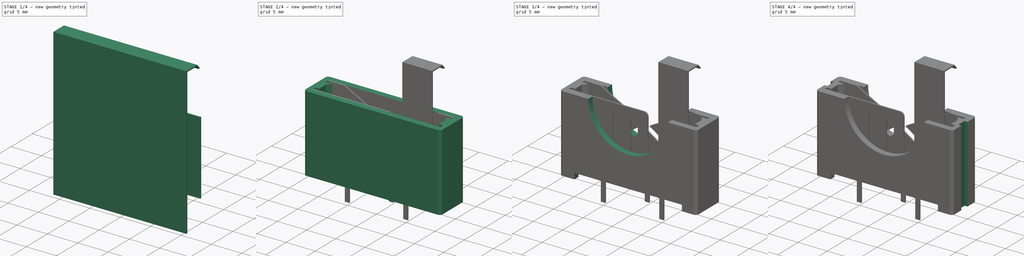
[diagram: build sequence overview — one tinted view per stage of 4, left to right]
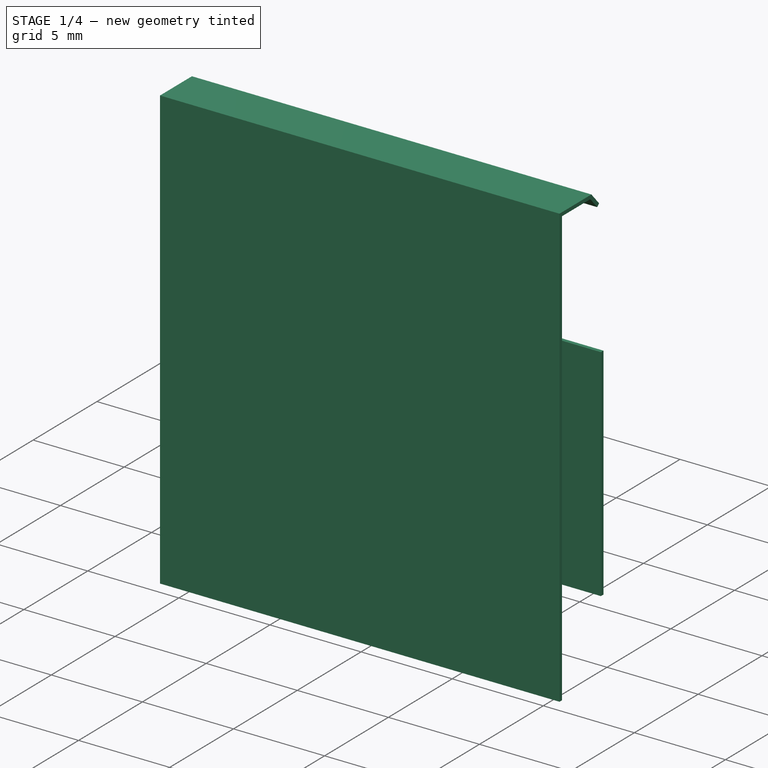
[diagram: stage 1 of 4 — iso view after this stage's code; geometry added in this stage tinted green]
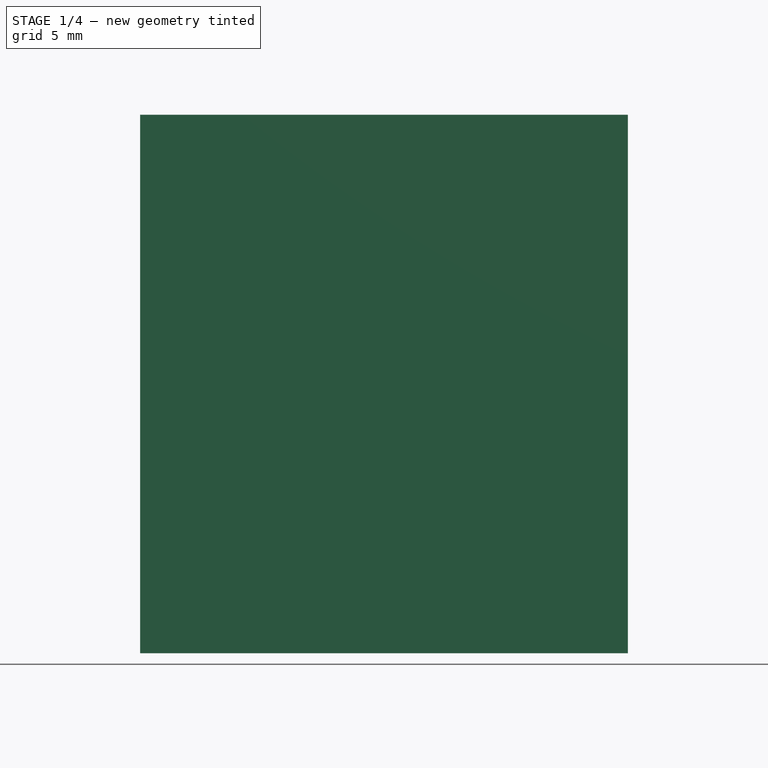
[diagram: stage 1 of 4 — front view after this stage's code; geometry added in this stage tinted green]
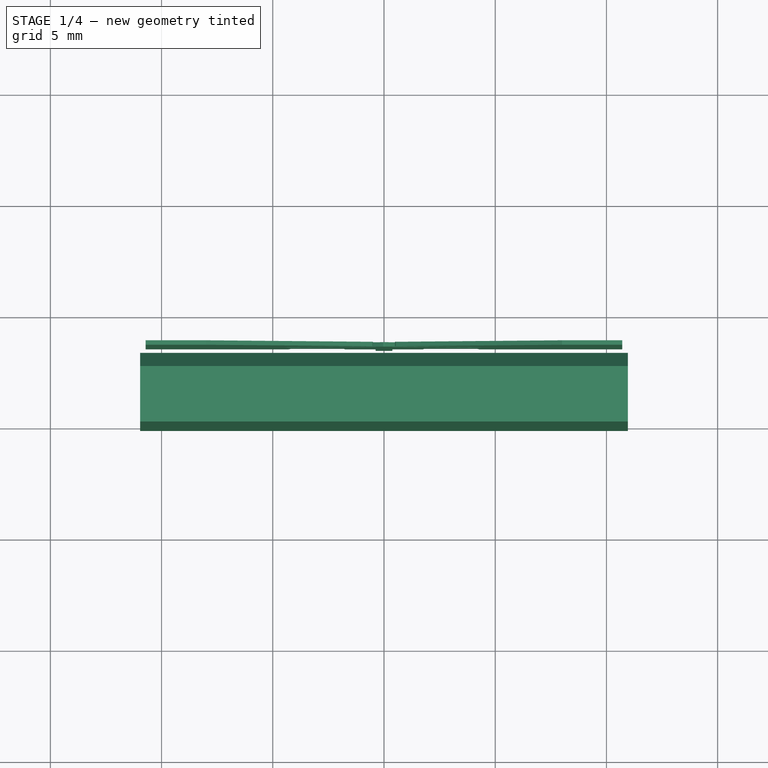
[diagram: stage 1 of 4 — top view after this stage's code; geometry added in this stage tinted green]
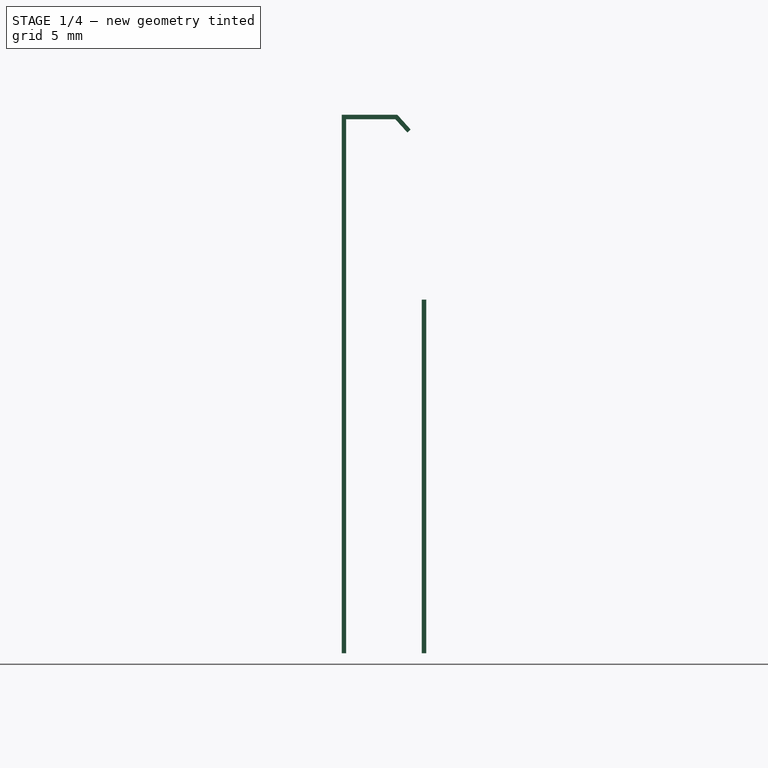
[diagram: stage 1 of 4 — right view after this stage's code; geometry added in this stage tinted green]
FCSTD DOCUMENT  (FreeCAD 1.0R38641 +468 (Git))
Label: bk-5058
License: All rights reserved
LicenseURL: http://en.wikipedia.org/wiki/All_rights_reserved
objects: Sketcher::SketchObject×11, PartDesign::Pocket×7, PartDesign::Pad×4, PartDesign::Body×3, PartDesign::Plane×2, Spreadsheet::Sheet×1, PartDesign::Mirrored×1
note: 62 computed .brp shape members not serialized (recipe doc carries the construction recipe); baked Part::Feature solids carry a one-line shape summary decoded from their .brp

FEATURE [PartDesign::Body] Body  label="Pkg"
  AllowCompound = false
  Group = -> [DatumPlane,Sketch,Pad,Sketch001,Pocket,Sketch002,Sketch010,Pad001,Pocket001,Sketch003,Pocket002,Mirrored,Sketch009,Pocket003,Sketch011,Pocket004]
  Origin = -> Origin
  Tip = -> Pocket004
FEATURE [Sketcher::SketchObject] Sketch005
  ArcFitTolerance = 0
  AttachmentSupport = -> [YZ_Plane001]
  FullyConstrained = true
  MakeInternals = false
  MapMode = 5
  Placement = pos=(0,0,0) rot=(0.57735,0.57735,0.57735;2.0944rad)
  expr: Constraints[14] = <<Param>>.pinaddh
  expr: Constraints[33] = <<Param>>.pinthick
  expr: Constraints[34] = <<Param>>.pkgh
  expr: Constraints[35] = <<Param>>.pinlen
  sketch-geometry (14):
    g0: LineSegment StartX=-0.1 StartY=13.1 StartZ=0 EndX=-0.1 EndY=21.41 EndZ=0
    g1: LineSegment StartX=-0.1 StartY=21.41 StartZ=0 EndX=2.4 EndY=21.41 EndZ=0
    g2: LineSegment StartX=2.4 StartY=21.41 StartZ=0 EndX=3 EndY=20.7439 EndZ=0
    g3: LineSegment StartX=3 StartY=20.7439 StartZ=0 EndX=2.85139 EndY=20.61 EndZ=0
    g4: LineSegment StartX=2.85139 StartY=20.61 StartZ=0 EndX=2.31097 EndY=21.21 EndZ=0
    g5: LineSegment StartX=2.31097 StartY=21.21 StartZ=0 EndX=0.1 EndY=21.21 EndZ=0
    g6: LineSegment StartX=0.1 StartY=21.21 StartZ=0 EndX=0.1 EndY=13.1 EndZ=0
    g7: LineSegment [constr] StartX=0.1 StartY=21.21 StartZ=0 EndX=0.1 EndY=21.41 EndZ=0
    g8: LineSegment StartX=-0.1 StartY=13.1 StartZ=0 EndX=-0.1 EndY=0 EndZ=0
    g9: LineSegment StartX=-0.1 StartY=0 StartZ=0 EndX=-0.1 EndY=-2.8 EndZ=0
    g10: LineSegment StartX=-0.1 StartY=-2.8 StartZ=0 EndX=0.1 EndY=-2.8 EndZ=0
    g11: LineSegment StartX=0.1 StartY=-2.8 StartZ=0 EndX=0.1 EndY=0 EndZ=0
    g12: LineSegment StartX=0.1 StartY=0 StartZ=0 EndX=0.1 EndY=13.1 EndZ=0
    g13: LineSegment [constr] StartX=-0.1 StartY=13.1 StartZ=0 EndX=0.1 EndY=13.1 EndZ=0
  constraints (40):
    c: Vertical(g0)
    c: Coincident(g0,g1)
    c: Horizontal(g1)
    c: Coincident(g1,g2)
    c: Coincident(g2,g3)
    c: Coincident(g3,g4)
    c: Coincident(g4,g5)
    c: Horizontal(g5)
    c: Coincident(g5,g6)
    c: Vertical(g6)
    c: Parallel(g4,g2)
    c: Coincident(g7,g5)
    c: PointOnObject(g7,g1)
    c: Vertical(g7)
    c: DistanceY(g0) = 8.31
    c: DistanceX(g0,g2) = 3.1
    c: Perpendicular(g3,g2)
    c: DistanceY(g1,g3) = -0.8
    c: DistanceX(g1) = 2.5
    c: Coincident(g0,g8)
    c: PointOnObject(g8,g-1)
    c: Vertical(g8)
    c: Coincident(g8,g9)
    c: Vertical(g9)
    c: Coincident(g9,g10)
    c: Horizontal(g10)
    c: Coincident(g10,g11)
    c: Vertical(g11)
    c: Coincident(g11,g12)
    c: Coincident(g12,g6)
    c: Vertical(g12)
    c: Equal(g10,g7)
    c: Equal(g7,g3)
    c: DistanceX(g10,g10) = 0.2
    c: DistanceY(g8,g8) = 13.1
    c: DistanceY(g9,g9) = 2.8
    c: Symmetric(g8,g11,g-1)
    c: Coincident(g13,g0)
    c: Coincident(g13,g6)
    c: Horizontal(g13)
FEATURE [PartDesign::Pad] Pad002
  Direction = (1,0,0)
  Length = 10.963
  Length2 = 10.963
  Placement = pos=(0,0,0) rot=(1,1,1;2.0944rad)
  Profile = -> Sketch005
  ReferenceAxis = -> Sketch005 [N_Axis]
  Suppressed = false
  Type = 4
  expr: Length = <<Param>>.batlp / 2
  expr: Length2 = <<Param>>.batlp / 2
FEATURE [PartDesign::Body] Body001  label="Pos"
  AllowCompound = false
  Group = -> [Sketch005,Pad002,Sketch004,Pocket005]
  Origin = -> Origin001
  Tip = -> Pocket005
FEATURE [PartDesign::Plane] DatumPlane001
  AttachmentOffset = pos=(0,0,-3.6) rot=(0,0,1;0rad)
  AttachmentSupport = -> [XZ_Plane002]
  Length = 60
  MapMode = 5
  Placement = pos=(0,3.6,-8e-16) rot=(1,0,0;1.5708rad)
  ResizeMode = 0
  Width = 60
  expr: .AttachmentOffset.Base.z = -<<Param>>.pinrow
FEATURE [Sketcher::SketchObject] Sketch012
  ArcFitTolerance = 0
  AttachmentSupport = -> [DatumPlane001]
  FullyConstrained = true
  MakeInternals = false
  MapMode = 5
  Placement = pos=(0,3.6,-8e-16) rot=(1,0,0;1.5708rad)
  expr: Constraints[16] = <<Param>>.pinlen
  expr: Constraints[17] = <<Param>>.pkgh
  expr: Constraints[18] = <<Param>>.batln
  sketch-geometry (7):
    g0: LineSegment StartX=-10.714 StartY=13.1 StartZ=0 EndX=10.714 EndY=13.1 EndZ=0
    g1: LineSegment StartX=10.714 StartY=13.1 StartZ=0 EndX=10.714 EndY=0 EndZ=0
    g2: LineSegment [constr] StartX=10.714 StartY=0 StartZ=0 EndX=-10.714 EndY=0 EndZ=0
    g3: LineSegment StartX=-10.714 StartY=0 StartZ=0 EndX=-10.714 EndY=13.1 EndZ=0
    g4: LineSegment StartX=10.714 StartY=0 StartZ=0 EndX=10.714 EndY=-2.8 EndZ=0
    g5: LineSegment StartX=10.714 StartY=-2.8 StartZ=0 EndX=-10.714 EndY=-2.8 EndZ=0
    g6: LineSegment StartX=-10.714 StartY=-2.8 StartZ=0 EndX=-10.714 EndY=0 EndZ=0
  constraints (19):
    c: Coincident(g0,g1)
    c: Coincident(g1,g2)
    c: Coincident(g2,g3)
    c: Coincident(g3,g0)
    c: Horizontal(g0)
    c: Horizontal(g2)
    c: Vertical(g1)
    c: Vertical(g3)
    c: Coincident(g1,g4)
    c: Vertical(g4)
    c: Coincident(g4,g5)
    c: Horizontal(g5)
    c: Coincident(g5,g6)
    c: Coincident(g6,g2)
    c: Vertical(g6)
    c: Symmetric(g3,g1,g-1)
    c: DistanceY(g6,g6) = 2.8
    c: DistanceY(g3,g3) = 13.1
    c: DistanceX(g0,g0) = 21.428
FEATURE [PartDesign::Pad] Pad003
  Direction = (0,-1,2e-16)
  Length = 0.1
  Length2 = 0.1
  Placement = pos=(0,3.6,-8e-16) rot=(1,0,0;1.5708rad)
  Profile = -> Sketch012
  ReferenceAxis = -> Sketch012 [N_Axis]
  Suppressed = false
  Type = 4
  expr: Length = <<Param>>.pinthick / 2
  expr: Length2 = <<Param>>.pinthick / 2
FEATURE [Sketcher::SketchObject] Sketch007
  ArcFitTolerance = 0
  AttachmentSupport = -> [DatumPlane001]
  FullyConstrained = true
  MakeInternals = false
  MapMode = 5
  Placement = pos=(0,3.6,-8e-16) rot=(1,0,0;1.5708rad)
  expr: Constraints[101] = <<Param>>.batln
  expr: Constraints[102] = <<Param>>.pkgh
  expr: Constraints[103] = <<Param>>.pinlen
  expr: Constraints[16] = <<Param>>.pkgboffset
  expr: Constraints[76] = <<Param>>.pinccutoff
  expr: Constraints[77] = <<Param>>.pinccut
  sketch-geometry (49):
    g0: LineSegment StartX=-10.714 StartY=1 StartZ=0 EndX=-4.3 EndY=1 EndZ=0
    g1: LineSegment StartX=-0.375 StartY=1 StartZ=0 EndX=-0.375 EndY=-2.8 EndZ=0
    g2: LineSegment [constr] StartX=-0.375 StartY=-2.8 StartZ=0 EndX=0.375 EndY=-2.8 EndZ=0
    g3: LineSegment StartX=0.375 StartY=-2.8 StartZ=0 EndX=0.375 EndY=1 EndZ=0
    g4: LineSegment StartX=0.375 StartY=1 StartZ=0 EndX=1.75 EndY=1 EndZ=0
    g5: LineSegment StartX=10.714 StartY=1 StartZ=0 EndX=10.714 EndY=-2.8 EndZ=0
    g6: LineSegment StartX=-10.714 StartY=-2.8 StartZ=0 EndX=-10.714 EndY=1 EndZ=0
    g7: LineSegment [constr] StartX=-0.375 StartY=1 StartZ=0 EndX=0.375 EndY=1 EndZ=0
    g8: LineSegment StartX=8 StartY=13.1 StartZ=0 EndX=0.548615 EndY=9.17822 EndZ=0
    g9: LineSegment StartX=0.539582 StartY=9.00661 StartZ=0 EndX=4.25023 EndY=6.52401 EndZ=0
    g10: LineSegment [constr] StartX=4.25023 StartY=6.52401 StartZ=0 EndX=3.74977 EndY=5.77599 EndZ=0
    g11: LineSegment StartX=3.74977 StartY=5.77599 StartZ=0 EndX=0.055607 EndY=8.24756 EndZ=0
    g12: LineSegment StartX=-0.055607 StartY=8.24756 StartZ=0 EndX=-3.74977 EndY=5.77599 EndZ=0
    g13: LineSegment [constr] StartX=-3.74977 StartY=5.77599 StartZ=0 EndX=-4.25023 EndY=6.52401 EndZ=0
    g14: LineSegment StartX=-4.25023 StartY=6.52401 StartZ=0 EndX=-0.539582 EndY=9.00661 EndZ=0
    g15: LineSegment StartX=-0.548615 StartY=9.17822 StartZ=0 EndX=-8 EndY=13.1 EndZ=0
    g16: LineSegment StartX=-8 StartY=13.1 StartZ=0 EndX=8 EndY=13.1 EndZ=0
    g17: LineSegment [constr] StartX=-0.4 StartY=9.1 StartZ=0 EndX=0.4 EndY=9.1 EndZ=0
    g18: ArcOfCircle CenterX=-4 CenterY=6.15 CenterZ=0 NormalX=0 NormalY=0 NormalZ=1 AngleXU=0 Radius=0.45 StartAngle=2.16045 EndAngle=5.30204
    g19: ArcOfCircle CenterX=4 CenterY=6.15 CenterZ=0 NormalX=0 NormalY=0 NormalZ=1 AngleXU=0 Radius=0.45 StartAngle=4.12274 EndAngle=7.26433
    g20: LineSegment [constr] StartX=-3.74977 StartY=5.77599 StartZ=0 EndX=3.74977 EndY=5.77599 EndZ=0
    g21: LineSegment [constr] StartX=-4 StartY=6.15 StartZ=0 EndX=-4 EndY=5.7 EndZ=0
    g22: LineSegment StartX=-4.3 StartY=1 StartZ=0 EndX=-4.2 EndY=2.34 EndZ=0
    g23: LineSegment StartX=-4.2 StartY=2.34 StartZ=0 EndX=-1.8 EndY=2.34 EndZ=0
    g24: LineSegment StartX=-1.8 StartY=2.34 StartZ=0 EndX=-1.75 EndY=1 EndZ=0
    g25: LineSegment StartX=1.75 StartY=1 StartZ=0 EndX=1.8 EndY=2.34 EndZ=0
    g26: LineSegment StartX=1.8 StartY=2.34 StartZ=0 EndX=4.2 EndY=2.34 EndZ=0
    g27: LineSegment StartX=4.2 StartY=2.34 StartZ=0 EndX=4.3 EndY=1 EndZ=0
    g28: LineSegment StartX=-1.75 StartY=1 StartZ=0 EndX=-0.375 EndY=1 EndZ=0
    g29: LineSegment StartX=4.3 StartY=1 StartZ=0 EndX=10.714 EndY=1 EndZ=0
    g30: LineSegment [constr] StartX=-4.3 StartY=1 StartZ=0 EndX=-1.75 EndY=1 EndZ=0
    g31: LineSegment [constr] StartX=1.75 StartY=1 StartZ=0 EndX=4.3 EndY=1 EndZ=0
    g32: LineSegment [constr] StartX=-1.8 StartY=2.34 StartZ=0 EndX=1.8 EndY=2.34 EndZ=0
    g33: LineSegment [constr] StartX=-4 StartY=6.15 StartZ=0 EndX=-4.45 EndY=6.15 EndZ=0
    g34: LineSegment [constr] StartX=4 StartY=6.15 StartZ=0 EndX=4.45 EndY=6.15 EndZ=0
    g35: LineSegment StartX=0.375 StartY=-2.8 StartZ=0 EndX=10.714 EndY=-2.8 EndZ=0
    g36: LineSegment StartX=-10.714 StartY=-2.8 StartZ=0 EndX=-0.375 EndY=-2.8 EndZ=0
    g37: LineSegment [constr] StartX=-8 StartY=13.1 StartZ=0 EndX=-10.714 EndY=13.1 EndZ=0
    g38: LineSegment [constr] StartX=-10.714 StartY=13.1 StartZ=0 EndX=-10.714 EndY=1 EndZ=0
    g39: LineSegment [constr] StartX=10.714 StartY=1 StartZ=0 EndX=10.714 EndY=13.1 EndZ=0
    g40: LineSegment [constr] StartX=10.714 StartY=13.1 StartZ=0 EndX=8 EndY=13.1 EndZ=0
    g41: GeomPoint [constr] X=0.4 Y=9.1 Z=0
    g42: GeomPoint [constr] X=-0.4 Y=9.1 Z=0
    g43: ArcOfCircle CenterX=-0.595189 CenterY=9.08973 CenterZ=0 NormalX=0 NormalY=0 NormalZ=1 AngleXU=0 Radius=0.1 StartAngle=5.30204 EndAngle=7.3695
    g44: GeomPoint [constr] X=-0.4 Y=9.1 Z=0
    g45: ArcOfCircle CenterX=0.595189 CenterY=9.08973 CenterZ=0 NormalX=0 NormalY=0 NormalZ=1 AngleXU=0 Radius=0.1 StartAngle=2.05527 EndAngle=4.12274
    g46: GeomPoint [constr] X=0.4 Y=9.1 Z=0
    g47: ArcOfCircle CenterX=1.9e-15 CenterY=8.16445 CenterZ=0 NormalX=0 NormalY=0 NormalZ=1 AngleXU=0 Radius=0.1 StartAngle=0.981147 EndAngle=2.16045
    g48: GeomPoint [constr] X=0 Y=8.28476 Z=0
  constraints (125):
    c: Horizontal(g0)
    c: Coincident(g28,g1)
    c: Vertical(g1)
    c: Coincident(g1,g2)
    c: Coincident(g2,g3)
    c: Coincident(g3,g4)
    c: Horizontal(g4)
    c: Coincident(g29,g5)
    c: Vertical(g5)
    c: Coincident(g6,g0)
    c: Vertical(g6)
    c: Vertical(g3)
    c: DistanceX(g2) = 0.75
    c: Coincident(g7,g28)
    c: Coincident(g7,g3)
    c: Horizontal(g7)
    c: DistanceY(g-1,g29) = 1
    c: Symmetric(g1,g2,g-2)
    c: Coincident(g9,g10)
    c: Coincident(g10,g11)
    c: Coincident(g12,g13)
    c: Coincident(g13,g14)
    c: Coincident(g15,g16)
    c: Coincident(g16,g8)
    c: Horizontal(g16)
    c: Coincident(g17,g42)
    c: Coincident(g17,g41)
    c: PointOnObject(g18,g13)
    c: Coincident(g18,g12)
    c: Coincident(g18,g13)
    c: PointOnObject(g19,g10)
    c: Coincident(g19,g9)
    c: Coincident(g19,g10)
    c: Equal(g10,g13)
    c: Parallel(g14,g12)
    c: Parallel(g11,g9)
    c: Perpendicular(g11,g10)
    c: Coincident(g20,g12)
    c: Coincident(g20,g10)
    c: Horizontal(g20)
    c: DistanceX(g17) = 0.8
    c: Symmetric(g41,g42,g-2)
    c: Distance(g10) = 0.9
    c: DistanceX(g16) = 16
    c: PointOnObject(g21,g18)
    c: Vertical(g21)
    c: Coincident(g18,g21)
    c: Perpendicular(g12,g13)
    c: DistanceY(g21,g15) = 7.4
    c: Coincident(g22,g23)
    c: Horizontal(g23)
    c: Coincident(g23,g24)
    c: Coincident(g25,g26)
    c: Horizontal(g26)
    c: Coincident(g26,g27)
    c: Coincident(g0,g22)
    c: Coincident(g28,g24)
    c: Coincident(g4,g25)
    c: Coincident(g29,g27)
    c: Coincident(g30,g0)
    c: Coincident(g30,g24)
    c: Coincident(g31,g4)
    c: Coincident(g31,g27)
    c: Horizontal(g31)
    c: Coincident(g32,g23)
    c: Coincident(g32,g25)
    c: Horizontal(g32)
    c: Horizontal(g28)
    c: Horizontal(g30)
    c: DistanceX(g24,g4) = 3.5
    c: Equal(g28,g4)
    c: DistanceX(g32) = 3.6
    c: Equal(g25,g24)
    c: Equal(g22,g27)
    c: Equal(g30,g31)
    c: Horizontal(g29)
    c: DistanceX(g0,g22) = 0.1
    c: DistanceX(g0,g27) = 8.6
    c: Coincident(g33,g18)
    c: PointOnObject(g33,g18)
    c: Horizontal(g33)
    c: Coincident(g34,g19)
    c: PointOnObject(g34,g19)
    c: Horizontal(g34)
    c: DistanceX(g33,g34) = 8.9
    c: Coincident(g35,g2)
    c: Coincident(g35,g5)
    c: Horizontal(g35)
    c: Coincident(g36,g6)
    c: Coincident(g36,g1)
    c: Horizontal(g36)
    c: Coincident(g15,g37)
    c: Horizontal(g37)
    c: Coincident(g37,g38)
    c: Coincident(g38,g0)
    c: Vertical(g38)
    c: Coincident(g5,g39)
    c: Vertical(g39)
    c: Coincident(g39,g40)
    c: Coincident(g40,g8)
    c: Equal(g37,g40)
    c: DistanceX(g37,g39) = 21.428
    c: DistanceY(g-1,g39) = 13.1
    c: DistanceY(g5,g-1) = 2.8
    c: Coincident(g17,g44)
    c: Coincident(g17,g46)
    c: PointOnObject(g48,g-2)
    c: Symmetric(g37,g39,g-2)
    c: PointOnObject(g44,g15)
    c: PointOnObject(g44,g14)
    c: Tangent(g15,g43) = -1.5708
    c: Tangent(g14,g43) = -1.5708
    c: PointOnObject(g46,g8)
    c: PointOnObject(g46,g9)
    c: Tangent(g8,g45) = -1.5708
    c: Tangent(g9,g45) = -1.5708
    c: PointOnObject(g48,g12)
    c: PointOnObject(g48,g11)
    c: Tangent(g12,g47) = -1.5708
    c: Tangent(g11,g47) = -1.5708
    c: Equal(g43,g45)
    c: Equal(g45,g47)
    c: Radius(g45) = 0.1
    c: DistanceY(g17,g37) = 4
    c: DistanceY(g5,g26) = 1.34
FEATURE [PartDesign::Pocket] Pocket006
  BaseFeature = -> Pad003
  Direction = (0,1,-2e-16)
  Length = 5
  Length2 = 5
  Midplane = true
  Placement = pos=(0,3.6,-8e-16) rot=(1,0,0;1.5708rad)
  Profile = -> Sketch007
  ReferenceAxis = -> Sketch007 [N_Axis]
  Suppressed = false
  Type = 1
FEATURE [PartDesign::Body] Body002  label="Neg"
  AllowCompound = false
  Group = -> [DatumPlane001,Sketch012,Pad003,Sketch007,Pocket006]
  Origin = -> Origin002
  Tip = -> Pocket006
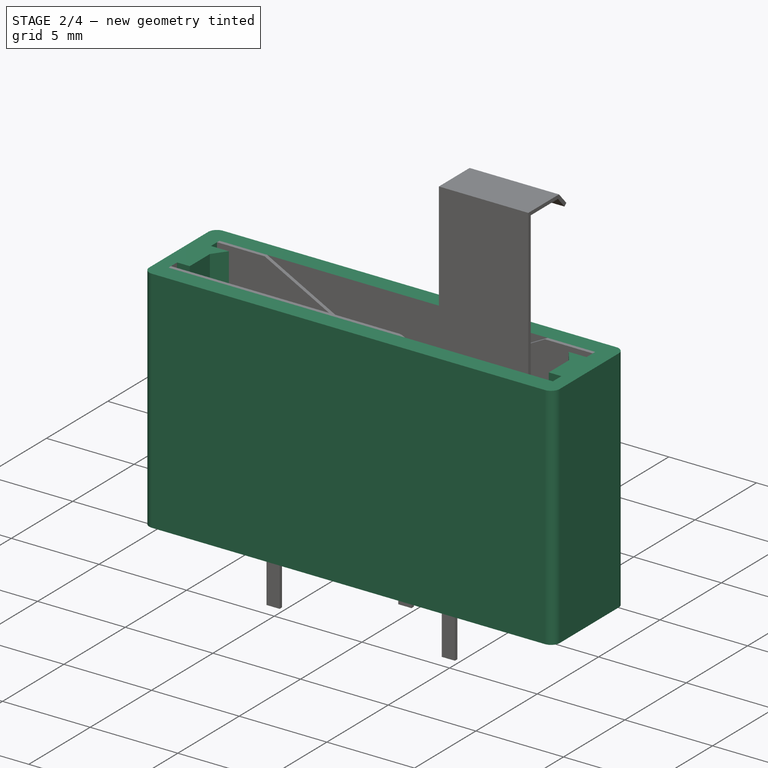
[diagram: stage 2 of 4 — iso view after this stage's code; geometry added in this stage tinted green]
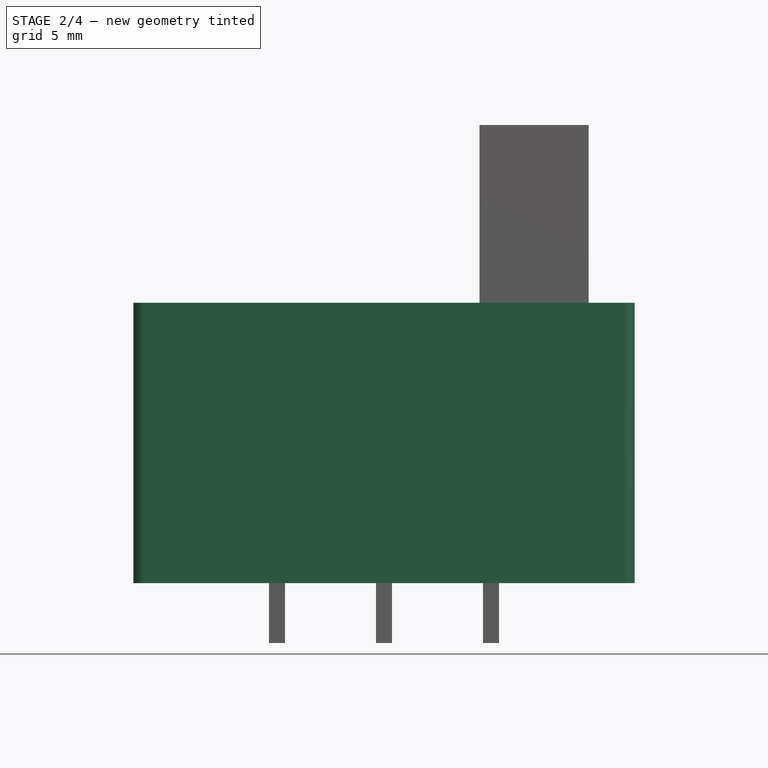
[diagram: stage 2 of 4 — front view after this stage's code; geometry added in this stage tinted green]
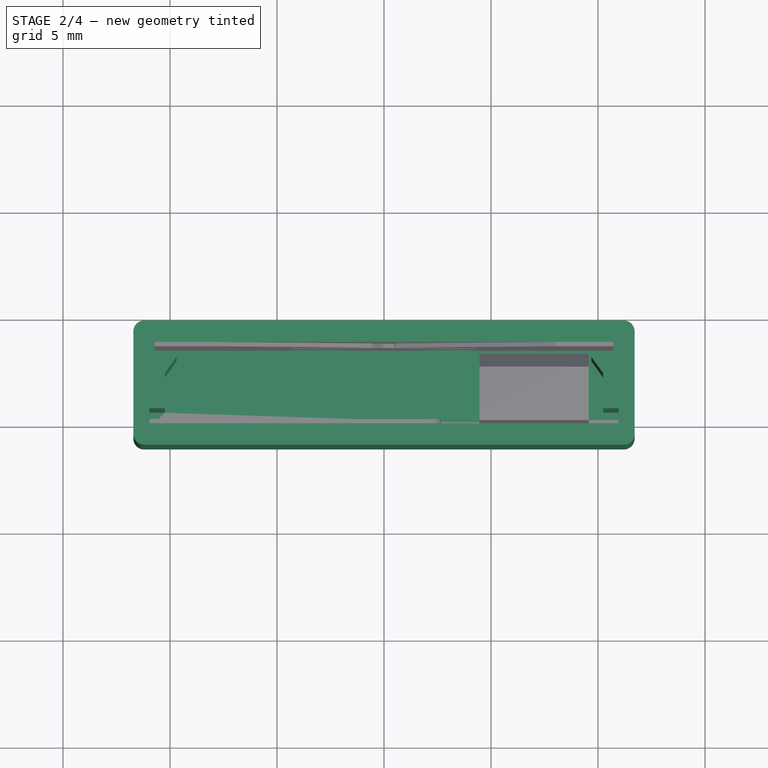
[diagram: stage 2 of 4 — top view after this stage's code; geometry added in this stage tinted green]
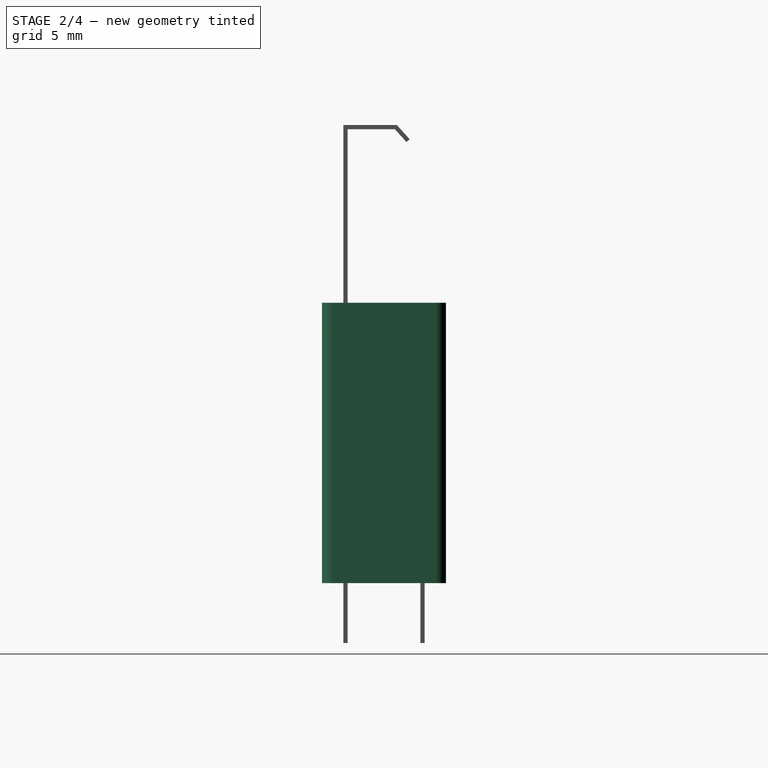
[diagram: stage 2 of 4 — right view after this stage's code; geometry added in this stage tinted green]
FEATURE [Spreadsheet::Sheet] Spreadsheet  label="Param"
  cells = A1='Pin; B2='Thick; C2(pinthick)==0.2 mm; B3='Length; C3(pinlen)==2.8 mm; B4='Pitch; C4(pinpitch)==5 mm; B5='Row; C5(pinrow)==3.6 mm; B6='Height above pkg; C6(pinaddh)==8.31 mm; B7='Center cutout; C7(pinccut)==8.6 mm; B8='Center cutout offset; C8(pinccutoff)==0.1 mm; A11='Pkg; B12='Height; C12(pkgh)==13.1 mm; B13='Length; C13(pkgl)==23.42 mm; B14='Width; C14(pkgw)==5.8 mm; B15='Bottom Offset; C15(pkgboffset)==pkgh - 12.1 mm; B16='Battery opening width; C16(batw)==pinrow + pinthick; B17='Battery opening length pos; C17(batlp)==pkgl - 0.747 mm * 2; B18='Battery opening length neg; C18(batln)==pkgl - 0.996 mm * 2; B19='Battery opening depth; C19(batd)==pkgh - 1 mm
FEATURE [Sketcher::SketchObject] Sketch
  ArcFitTolerance = 0
  AttachmentSupport = -> [XY_Plane]
  FullyConstrained = true
  MakeInternals = false
  MapMode = 5
  expr: Constraints[29] = <<Param>>.pinrow
  expr: Constraints[35] = <<Param>>.pkgl
  expr: Constraints[36] = <<Param>>.pkgw
  sketch-geometry (16):
    g0: LineSegment StartX=11.71 StartY=4.2 StartZ=0 EndX=11.71 EndY=-0.6 EndZ=0
    g1: LineSegment StartX=11.21 StartY=-1.1 StartZ=0 EndX=-11.21 EndY=-1.1 EndZ=0
    g2: LineSegment StartX=-11.71 StartY=-0.6 StartZ=0 EndX=-11.71 EndY=4.2 EndZ=0
    g3: ArcOfCircle CenterX=-11.21 CenterY=4.2 CenterZ=0 NormalX=0 NormalY=0 NormalZ=1 AngleXU=0 Radius=0.5 StartAngle=1.5708 EndAngle=3.14159
    g4: GeomPoint [constr] X=-11.71 Y=4.7 Z=0
    g5: ArcOfCircle CenterX=-11.21 CenterY=-0.6 CenterZ=0 NormalX=0 NormalY=0 NormalZ=1 AngleXU=0 Radius=0.5 StartAngle=3.14159 EndAngle=4.71239
    g6: GeomPoint [constr] X=-11.71 Y=-1.1 Z=0
    g7: ArcOfCircle CenterX=11.21 CenterY=4.2 CenterZ=0 NormalX=0 NormalY=0 NormalZ=1 AngleXU=0 Radius=0.5 StartAngle=-9e-16 EndAngle=1.5708
    g8: GeomPoint [constr] X=11.71 Y=4.7 Z=0
    g9: ArcOfCircle CenterX=11.21 CenterY=-0.6 CenterZ=0 NormalX=0 NormalY=0 NormalZ=1 AngleXU=0 Radius=0.5 StartAngle=4.71239 EndAngle=6.28319
    g10: GeomPoint [constr] X=11.71 Y=-1.1 Z=0
    g11: LineSegment [constr] StartX=0 StartY=4.7 StartZ=0 EndX=0 EndY=3.6 EndZ=0
    g12: LineSegment [constr] StartX=0 StartY=3.6 StartZ=0 EndX=0 EndY=0 EndZ=0
    g13: LineSegment [constr] StartX=0 StartY=0 StartZ=0 EndX=0 EndY=-1.1 EndZ=0
    g14: LineSegment StartX=-11.21 StartY=4.7 StartZ=0 EndX=0 EndY=4.7 EndZ=0
    g15: LineSegment StartX=0 StartY=4.7 StartZ=0 EndX=11.21 EndY=4.7 EndZ=0
  constraints (39):
    c: Horizontal(g1)
    c: Vertical(g0)
    c: Vertical(g2)
    c: PointOnObject(g4,g2)
    c: Tangent(g2,g3) = 1.5708
    c: PointOnObject(g6,g2)
    c: PointOnObject(g6,g1)
    c: Tangent(g2,g5) = 1.5708
    c: Tangent(g1,g5) = 1.5708
    c: PointOnObject(g8,g0)
    c: Tangent(g0,g7) = 1.5708
    c: PointOnObject(g10,g0)
    c: PointOnObject(g10,g1)
    c: Tangent(g0,g9) = 1.5708
    c: Tangent(g1,g9) = 1.5708
    c: Vertical(g11)
    c: Coincident(g11,g12)
    c: Vertical(g12)
    c: Coincident(g12,g13)
    c: PointOnObject(g13,g1)
    c: Vertical(g13)
    c: Coincident(g14,g15)
    c: Horizontal(g14)
    c: Horizontal(g15)
    c: PointOnObject(g4,g14)
    c: PointOnObject(g8,g15)
    c: Coincident(g11,g14)
    c: Equal(g14,g15)
    c: Equal(g11,g13)
    c: DistanceY(g12,g12) = 3.6
    c: Equal(g3,g5)
    c: Equal(g5,g7)
    c: Equal(g7,g9)
    c: Tangent(g15,g7) = 1.5708
    c: Tangent(g14,g3) = 1.5708
    c: DistanceX(g4,g8) = 23.42
    c: DistanceY(g10,g8) = 5.8
    c: Coincident(g12,g-1)
    c: Radius(g9) = 0.5
FEATURE [PartDesign::Plane] DatumPlane
  Length = 60
  MapMode = 2
  Placement = pos=(0,0,13.1) rot=(0,0,1;0rad)
  ResizeMode = 0
  Width = 60
  expr: .Placement.Base.z = <<Param>>.pkgh
FEATURE [PartDesign::Pad] Pad
  Direction = (0,0,1)
  Length = 13.1
  Length2 = 10
  Profile = -> Sketch
  ReferenceAxis = -> Sketch [N_Axis]
  Suppressed = false
  Type = 0
  expr: Length = <<Param>>.pkgh
FEATURE [Sketcher::SketchObject] Sketch001
  ArcFitTolerance = 0
  AttachmentSupport = -> [DatumPlane]
  FullyConstrained = true
  MakeInternals = false
  MapMode = 5
  Placement = pos=(0,0,13.1) rot=(0,0,1;0rad)
  expr: Constraints[28] = <<Param>>.batlp
  expr: Constraints[29] = <<Param>>.batln
  expr: Constraints[37] = <<Param>>.batw
  expr: Constraints[42] = <<Param>>.pinthick / 2
  sketch-geometry (15):
    g0: LineSegment StartX=-10.714 StartY=3.7 StartZ=0 EndX=10.714 EndY=3.7 EndZ=0
    g1: LineSegment StartX=10.714 StartY=3.7 StartZ=0 EndX=10.714 EndY=3 EndZ=0
    g2: LineSegment StartX=10.714 StartY=3 StartZ=0 EndX=9.693 EndY=3 EndZ=0
    g3: LineSegment StartX=9.693 StartY=3 StartZ=0 EndX=10.241 EndY=2.243 EndZ=0
    g4: LineSegment StartX=10.241 StartY=2.243 StartZ=0 EndX=10.241 EndY=0.6 EndZ=0
    g5: LineSegment StartX=10.241 StartY=0.6 StartZ=0 EndX=10.963 EndY=0.6 EndZ=0
    g6: LineSegment StartX=10.963 StartY=0.6 StartZ=0 EndX=10.963 EndY=-0.1 EndZ=0
    g7: LineSegment StartX=10.963 StartY=-0.1 StartZ=0 EndX=-10.963 EndY=-0.1 EndZ=0
    g8: LineSegment StartX=-10.963 StartY=-0.1 StartZ=0 EndX=-10.963 EndY=0.6 EndZ=0
    g9: LineSegment StartX=-10.963 StartY=0.6 StartZ=0 EndX=-10.241 EndY=0.6 EndZ=0
    g10: LineSegment StartX=-10.241 StartY=0.6 StartZ=0 EndX=-10.241 EndY=2.243 EndZ=0
    g11: LineSegment StartX=-10.241 StartY=2.243 StartZ=0 EndX=-9.693 EndY=3 EndZ=0
    g12: LineSegment StartX=-9.693 StartY=3 StartZ=0 EndX=-10.714 EndY=3 EndZ=0
    g13: LineSegment StartX=-10.714 StartY=3 StartZ=0 EndX=-10.714 EndY=3.7 EndZ=0
    g14: LineSegment [constr] StartX=0 StartY=0 StartZ=0 EndX=0 EndY=-0.1 EndZ=0
  constraints (43):
    c: Vertical(g8)
    c: Vertical(g10)
    c: Vertical(g13)
    c: Vertical(g4)
    c: Vertical(g1)
    c: Vertical(g6)
    c: Horizontal(g5)
    c: Horizontal(g2)
    c: Horizontal(g9)
    c: Horizontal(g12)
    c: Coincident(g13,g0)
    c: Coincident(g12,g13)
    c: Coincident(g12,g11)
    c: Coincident(g11,g10)
    c: Coincident(g9,g10)
    c: Coincident(g8,g9)
    c: Coincident(g8,g7)
    c: Coincident(g0,g1)
    c: Coincident(g2,g1)
    c: Coincident(g2,g3)
    c: Coincident(g4,g3)
    c: Coincident(g4,g5)
    c: Coincident(g5,g6)
    c: Coincident(g6,g7)
    c: Equal(g13,g1)
    c: Equal(g10,g4)
    c: Equal(g8,g6)
    c: Equal(g9,g5)
    c: DistanceX(g7,g7) = 21.926
    c: DistanceX(g0,g0) = 21.428
    c: Equal(g13,g8)
    c: DistanceY(g13,g13) = 0.7
    c: Equal(g12,g2)
    c: Symmetric(g6,g7,g-2)
    c: Symmetric(g0,g0,g-2)
    c: DistanceX(g12,g12) = 1.021
    c: DistanceY(g10,g10) = 1.643
    c: DistanceY(g7,g0) = 3.8
    c: DistanceX(g9,g9) = 0.722
    c: Coincident(g14,g-1)
    c: PointOnObject(g14,g7)
    c: Vertical(g14)
    c: DistanceY(g14,g14) = 0.1
FEATURE [PartDesign::Pocket] Pocket
  BaseFeature = -> Pad
  Direction = (0,0,-1)
  Length = 12.1
  Length2 = 5
  Profile = -> Sketch001
  ReferenceAxis = -> Sketch001 [N_Axis]
  Suppressed = false
  Type = 0
  expr: Length = <<Param>>.batd
FEATURE [Sketcher::SketchObject] Sketch004
  ArcFitTolerance = 0
  AttachmentSupport = -> [XZ_Plane001]
  FullyConstrained = true
  MakeInternals = false
  MapMode = 5
  Placement = pos=(0,0,0) rot=(1,0,0;1.5708rad)
  expr: Constraints[122] = <<Param>>.pinccutoff
  expr: Constraints[158] = <<Param>>.pkgh
  expr: Constraints[159] = <<Param>>.pinlen
  expr: Constraints[160] = <<Param>>.pinaddh
  expr: Constraints[161] = <<Param>>.batlp
  expr: Constraints[177] = <<Param>>.pinccut
  expr: Constraints[24] = <<Param>>.pkgboffset
  sketch-geometry (66):
    g0: LineSegment StartX=-5.375 StartY=-2.8 StartZ=0 EndX=-5.375 EndY=1 EndZ=0
    g1: LineSegment StartX=-5.375 StartY=1 StartZ=0 EndX=-10.963 EndY=1 EndZ=0
    g2: LineSegment StartX=-10.963 StartY=1 StartZ=0 EndX=-10.963 EndY=-2.8 EndZ=0
    g3: LineSegment StartX=10.963 StartY=-2.8 StartZ=0 EndX=10.963 EndY=1 EndZ=0
    g4: LineSegment StartX=10.963 StartY=1 StartZ=0 EndX=5.375 EndY=1 EndZ=0
    g5: LineSegment StartX=5.375 StartY=1 StartZ=0 EndX=5.375 EndY=-2.8 EndZ=0
    g6: LineSegment [constr] StartX=5.375 StartY=-2.8 StartZ=0 EndX=4.625 EndY=-2.8 EndZ=0
    g7: LineSegment StartX=4.625 StartY=-2.8 StartZ=0 EndX=4.625 EndY=1 EndZ=0
    g8: LineSegment StartX=4.625 StartY=1 StartZ=0 EndX=4.3 EndY=1 EndZ=0
    g9: LineSegment StartX=-4.625 StartY=1 StartZ=0 EndX=-4.625 EndY=-2.8 EndZ=0
    g10: LineSegment [constr] StartX=-4.625 StartY=-2.8 StartZ=0 EndX=-5.375 EndY=-2.8 EndZ=0
    g11: LineSegment StartX=-4.625 StartY=-2.8 StartZ=0 EndX=4.625 EndY=-2.8 EndZ=0
    g12: LineSegment [constr] StartX=-5.375 StartY=1 StartZ=0 EndX=-5 EndY=1 EndZ=0
    g13: LineSegment [constr] StartX=-5 StartY=1 StartZ=0 EndX=-4.625 EndY=1 EndZ=0
    g14: LineSegment [constr] StartX=4.625 StartY=1 StartZ=0 EndX=5 EndY=1 EndZ=0
    g15: LineSegment [constr] StartX=5 StartY=1 StartZ=0 EndX=5.375 EndY=1 EndZ=0
    g16: LineSegment StartX=2.663 StartY=12.45 StartZ=0 EndX=2.663 EndY=5.99 EndZ=0
    g17: LineSegment [constr] StartX=2.663 StartY=5.99 StartZ=0 EndX=0.963 EndY=5.99 EndZ=0
    g18: LineSegment StartX=0.963 StartY=5.99 StartZ=0 EndX=0.963 EndY=10.75 EndZ=0
    g19: LineSegment [constr] StartX=0.963 StartY=10.75 StartZ=0 EndX=-0.337 EndY=10.75 EndZ=0
    g20: LineSegment StartX=-0.337 StartY=10.75 StartZ=0 EndX=-0.337 EndY=5.99 EndZ=0
    g21: LineSegment [constr] StartX=-0.337 StartY=5.99 StartZ=0 EndX=-2.037 EndY=5.99 EndZ=0
    g22: LineSegment StartX=-2.037 StartY=5.99 StartZ=0 EndX=-2.037 EndY=10.75 EndZ=0
    g23: LineSegment [constr] StartX=-2.037 StartY=10.75 StartZ=0 EndX=-3.337 EndY=10.75 EndZ=0
    g24: LineSegment StartX=-3.337 StartY=10.75 StartZ=0 EndX=-3.337 EndY=4.44 EndZ=0
    g25: LineSegment StartX=-3.337 StartY=4.44 StartZ=0 EndX=4.463 EndY=4.44 EndZ=0
    g26: LineSegment StartX=4.463 StartY=4.44 StartZ=0 EndX=4.463 EndY=13.1 EndZ=0
    g27: LineSegment [constr] StartX=4.463 StartY=13.1 StartZ=0 EndX=2.663 EndY=13.1 EndZ=0
    g28: ArcOfCircle CenterX=0.313 CenterY=10.75 CenterZ=0 NormalX=0 NormalY=0 NormalZ=1 AngleXU=0 Radius=0.65 StartAngle=4e-16 EndAngle=3.14159
    g29: ArcOfCircle CenterX=-2.687 CenterY=10.75 CenterZ=0 NormalX=0 NormalY=0 NormalZ=1 AngleXU=0 Radius=0.65 StartAngle=3.9e-15 EndAngle=3.14159
    g30: ArcOfCircle CenterX=-1.187 CenterY=5.99 CenterZ=0 NormalX=0 NormalY=0 NormalZ=1 AngleXU=0 Radius=0.85 StartAngle=3.14159 EndAngle=6.28319
    g31: ArcOfCircle CenterX=1.813 CenterY=5.99 CenterZ=0 NormalX=0 NormalY=0 NormalZ=1 AngleXU=0 Radius=0.85 StartAngle=3.14159 EndAngle=6.28319
    g32: LineSegment [constr] StartX=-2.037 StartY=10.75 StartZ=0 EndX=-0.337 EndY=10.75 EndZ=0
    g33: LineSegment [constr] StartX=-0.337 StartY=5.99 StartZ=0 EndX=0.963 EndY=5.99 EndZ=0
    g34: LineSegment [constr] StartX=0.313 StartY=10.75 StartZ=0 EndX=0.313 EndY=11.4 EndZ=0
    g35: LineSegment [constr] StartX=1.813 StartY=5.99 StartZ=0 EndX=1.813 EndY=5.14 EndZ=0
    g36: LineSegment [constr] StartX=9.563 StartY=13.1 StartZ=0 EndX=10.963 EndY=13.1 EndZ=0
    g37: LineSegment StartX=10.963 StartY=13.1 StartZ=0 EndX=10.963 EndY=10.1 EndZ=0
    g38: LineSegment StartX=10.963 StartY=10.1 StartZ=0 EndX=9.563 EndY=10.1 EndZ=0
    g39: LineSegment StartX=9.563 StartY=10.1 StartZ=0 EndX=9.563 EndY=13.1 EndZ=0
    g40: LineSegment StartX=-4.3 StartY=1 StartZ=0 EndX=-4.2 EndY=2.34 EndZ=0
    g41: LineSegment StartX=-4.2 StartY=2.34 StartZ=0 EndX=-1.3 EndY=2.34 EndZ=0
    g42: LineSegment StartX=-1.3 StartY=2.34 StartZ=0 EndX=-1.25 EndY=1 EndZ=0
    g43: LineSegment StartX=1.25 StartY=1 StartZ=0 EndX=1.3 EndY=2.34 EndZ=0
    g44: LineSegment StartX=1.3 StartY=2.34 StartZ=0 EndX=4.2 EndY=2.34 EndZ=0
    g45: LineSegment StartX=4.2 StartY=2.34 StartZ=0 EndX=4.3 EndY=1 EndZ=0
    g46: LineSegment StartX=-4.3 StartY=1 StartZ=0 EndX=-4.625 EndY=1 EndZ=0
    g47: LineSegment StartX=1.25 StartY=1 StartZ=0 EndX=-1.25 EndY=1 EndZ=0
    g48: LineSegment [constr] StartX=-1.3 StartY=2.34 StartZ=0 EndX=1.3 EndY=2.34 EndZ=0
    g49: LineSegment [constr] StartX=-4.3 StartY=1 StartZ=0 EndX=-1.25 EndY=1 EndZ=0
    g50: LineSegment [constr] StartX=1.25 StartY=1 StartZ=0 EndX=4.3 EndY=1 EndZ=0
    g51: LineSegment StartX=2.013 StartY=13.1 StartZ=0 EndX=-10.963 EndY=13.1 EndZ=0
    g52: LineSegment StartX=-10.963 StartY=13.1 StartZ=0 EndX=-10.963 EndY=21.41 EndZ=0
    g53: LineSegment StartX=-10.963 StartY=21.41 StartZ=0 EndX=4.463 EndY=21.41 EndZ=0
    g54: LineSegment StartX=4.463 StartY=21.41 StartZ=0 EndX=4.463 EndY=13.1 EndZ=0
    g55: LineSegment StartX=9.563 StartY=13.1 StartZ=0 EndX=9.563 EndY=21.41 EndZ=0
    g56: LineSegment StartX=9.563 StartY=21.41 StartZ=0 EndX=10.963 EndY=21.41 EndZ=0
    g57: LineSegment StartX=10.963 StartY=21.41 StartZ=0 EndX=10.963 EndY=13.1 EndZ=0
    g58: LineSegment [constr] StartX=4.463 StartY=21.41 StartZ=0 EndX=9.563 EndY=21.41 EndZ=0
    g59: LineSegment [constr] StartX=4.463 StartY=13.1 StartZ=0 EndX=9.563 EndY=13.1 EndZ=0
    g60: LineSegment [constr] StartX=-10.963 StartY=13.1 StartZ=0 EndX=-10.963 EndY=1 EndZ=0
    g61: LineSegment StartX=5.375 StartY=-2.8 StartZ=0 EndX=10.963 EndY=-2.8 EndZ=0
    g62: LineSegment StartX=-5.375 StartY=-2.8 StartZ=0 EndX=-10.963 EndY=-2.8 EndZ=0
    g63: LineSegment [constr] StartX=10.963 StartY=10.1 StartZ=0 EndX=10.963 EndY=1 EndZ=0
    g64: ArcOfCircle CenterX=2.013 CenterY=12.45 CenterZ=0 NormalX=0 NormalY=0 NormalZ=1 AngleXU=0 Radius=0.65 StartAngle=1.2e-15 EndAngle=1.5708
    g65: GeomPoint [constr] X=2.663 Y=13.1 Z=0
  constraints (178):
    c: Vertical(g0)
    c: Coincident(g0,g1)
    c: Horizontal(g1)
    c: Coincident(g1,g2)
    c: Vertical(g2)
    c: Vertical(g3)
    c: Coincident(g3,g4)
    c: Coincident(g4,g5)
    c: Coincident(g5,g6)
    c: Coincident(g6,g7)
    c: Coincident(g7,g8)
    c: Horizontal(g8)
    c: Coincident(g46,g9)
    c: Coincident(g9,g10)
    c: Coincident(g10,g0)
    c: Horizontal(g10)
    c: Horizontal(g6)
    c: Horizontal(g4)
    c: Vertical(g9)
    c: Vertical(g5)
    c: Vertical(g7)
    c: Coincident(g11,g9)
    c: Coincident(g11,g6)
    c: Horizontal(g11)
    c: DistanceY(g-1,g3) = 1
    c: Coincident(g0,g12)
    c: Coincident(g12,g13)
    c: Horizontal(g13)
    c: Coincident(g46,g13)
    c: Horizontal(g12)
    c: Equal(g12,g13)
    c: Coincident(g7,g14)
    c: Horizontal(g14)
    c: Coincident(g14,g15)
    c: Horizontal(g15)
    c: Equal(g15,g14)
    c: Equal(g6,g10)
    c: DistanceX(g12,g14) = 10
    c: Coincident(g15,g4)
    c: Vertical(g16)
    c: Coincident(g16,g17)
    c: Coincident(g17,g18)
    c: Vertical(g18)
    c: Coincident(g18,g19)
    c: Coincident(g19,g20)
    c: Coincident(g20,g21)
    c: Coincident(g21,g22)
    c: Coincident(g22,g23)
    c: Coincident(g23,g24)
    c: Coincident(g24,g25)
    c: Coincident(g25,g26)
    c: Vertical(g26)
    c: Coincident(g26,g27)
    c: Coincident(g27,g65)
    c: PointOnObject(g28,g19)
    c: Coincident(g28,g19)
    c: Coincident(g28,g18)
    c: Coincident(g29,g23)
    c: Coincident(g29,g22)
    c: PointOnObject(g30,g21)
    c: Coincident(g30,g21)
    c: Coincident(g30,g20)
    c: PointOnObject(g31,g17)
    c: Coincident(g31,g17)
    c: Coincident(g31,g16)
    c: Horizontal(g23)
    c: Vertical(g24)
    c: Vertical(g22)
    c: Vertical(g20)
    c: Horizontal(g21)
    c: Horizontal(g17)
    c: Horizontal(g19)
    c: Horizontal(g25)
    c: Horizontal(g27)
    c: PointOnObject(g29,g23)
    c: Coincident(g32,g22)
    c: Coincident(g32,g19)
    c: Horizontal(g32)
    c: Coincident(g33,g17)
    c: Horizontal(g33)
    c: Coincident(g20,g33)
    c: Equal(g21,g17)
    c: Equal(g23,g19)
    c: DistanceY(g26) = 8.66
    c: Coincident(g34,g28)
    c: PointOnObject(g34,g28)
    c: Vertical(g34)
    c: DistanceY(g34,g65) = 1.7
    c: Coincident(g35,g31)
    c: PointOnObject(g35,g31)
    c: Vertical(g35)
    c: Coincident(g36,g37)
    c: Coincident(g37,g38)
    c: Coincident(g38,g39)
    c: Coincident(g39,g36)
    c: Horizontal(g36)
    c: Horizontal(g38)
    c: Vertical(g37)
    c: Vertical(g39)
    c: DistanceX(g26,g36) = 5.1
    c: Coincident(g40,g41)
    c: Horizontal(g41)
    c: Coincident(g41,g42)
    c: Coincident(g43,g44)
    c: Horizontal(g44)
    c: Coincident(g44,g45)
    c: Coincident(g47,g42)
    c: Coincident(g46,g40)
    c: Coincident(g8,g45)
    c: Coincident(g47,g43)
    c: Coincident(g48,g41)
    c: Coincident(g48,g43)
    c: Horizontal(g46)
    c: Equal(g41,g44)
    c: Equal(g40,g45)
    c: Symmetric(g41,g43,g-2)
    c: Equal(g46,g8)
    c: Symmetric(g42,g43,g-2)
    c: Coincident(g49,g40)
    c: Coincident(g49,g42)
    c: Horizontal(g49)
    c: DistanceX(g48) = 2.6
    c: DistanceX(g40,g40) = 0.1
    c: Coincident(g50,g43)
    c: Coincident(g50,g8)
    c: Horizontal(g50)
    c: Horizontal(g51)
    c: Coincident(g51,g52)
    c: Vertical(g52)
    c: Coincident(g52,g53)
    c: Horizontal(g53)
    c: Coincident(g53,g54)
    c: Coincident(g54,g26)
    c: Vertical(g54)
    c: Coincident(g36,g55)
    c: Vertical(g55)
    c: Coincident(g55,g56)
    c: Horizontal(g56)
    c: Coincident(g56,g57)
    c: Coincident(g57,g36)
    c: Vertical(g57)
    c: Coincident(g58,g53)
    c: Coincident(g58,g55)
    c: Coincident(g59,g26)
    c: Horizontal(g59)
    c: Coincident(g59,g39)
    c: Coincident(g60,g51)
    c: Coincident(g60,g1)
    c: Vertical(g60)
    c: Coincident(g61,g5)
    c: Horizontal(g61)
    c: Coincident(g62,g0)
    c: Horizontal(g62)
    c: Coincident(g2,g62)
    c: Coincident(g3,g61)
    c: Coincident(g63,g37)
    c: Coincident(g63,g3)
    c: Vertical(g63)
    c: DistanceY(g-1,g37) = 13.1
    c: DistanceY(g3,g-1) = 2.8
    c: DistanceY(g57,g57) = 8.31
    c: DistanceX(g52,g56) = 21.926
    c: Symmetric(g56,g52,g-2)
    c: DistanceX(g56,g56) = 1.4
    c: DistanceY(g37,g37) = 3
    c: DistanceX(g27,g27) = 1.8
    c: DistanceX(g6,g6) = 0.75
    c: DistanceX(g19,g19) = 1.3
    c: DistanceX(g17,g17) = 1.7
    c: DistanceX(g47,g47) = 2.5
    c: DistanceY(g3,g44) = 1.34
    c: DistanceY(g25,g35) = 0.7
    c: PointOnObject(g65,g51)
    c: PointOnObject(g65,g16)
    c: Tangent(g51,g64) = -1.5708
    c: Tangent(g16,g64) = 1.5708
    c: Radius(g64) = 0.65
    c: DistanceX(g40,g8) = 8.6
FEATURE [PartDesign::Pocket] Pocket005
  BaseFeature = -> Pad002
  Direction = (0,1,-2e-16)
  Length = 5
  Length2 = 5
  Midplane = true
  Placement = pos=(0,0,0) rot=(1,1,1;2.0944rad)
  Profile = -> Sketch004
  ReferenceAxis = -> Sketch004 [N_Axis]
  Refine = true
  Suppressed = false
  Type = 1
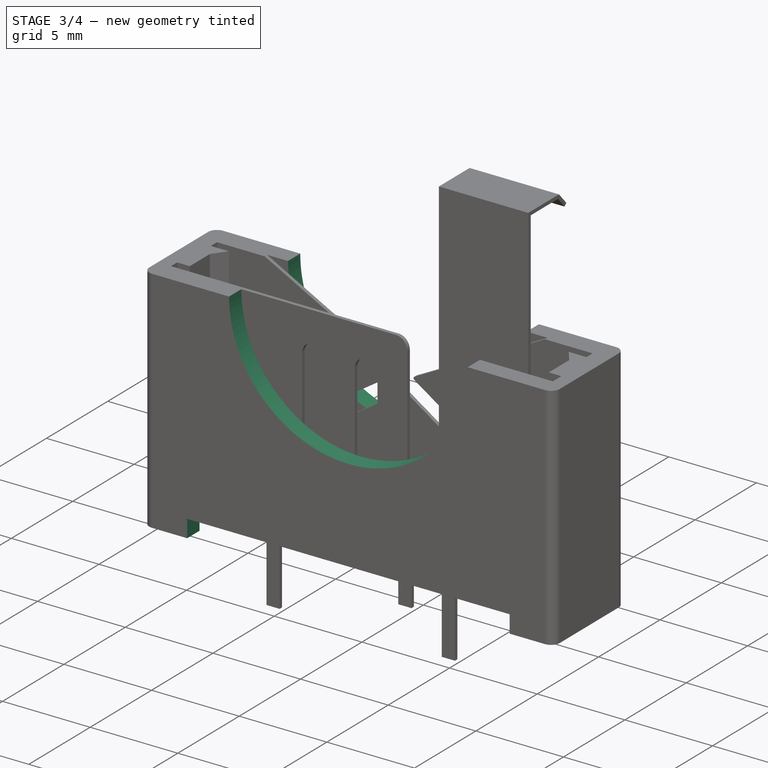
[diagram: stage 3 of 4 — iso view after this stage's code; geometry added in this stage tinted green]
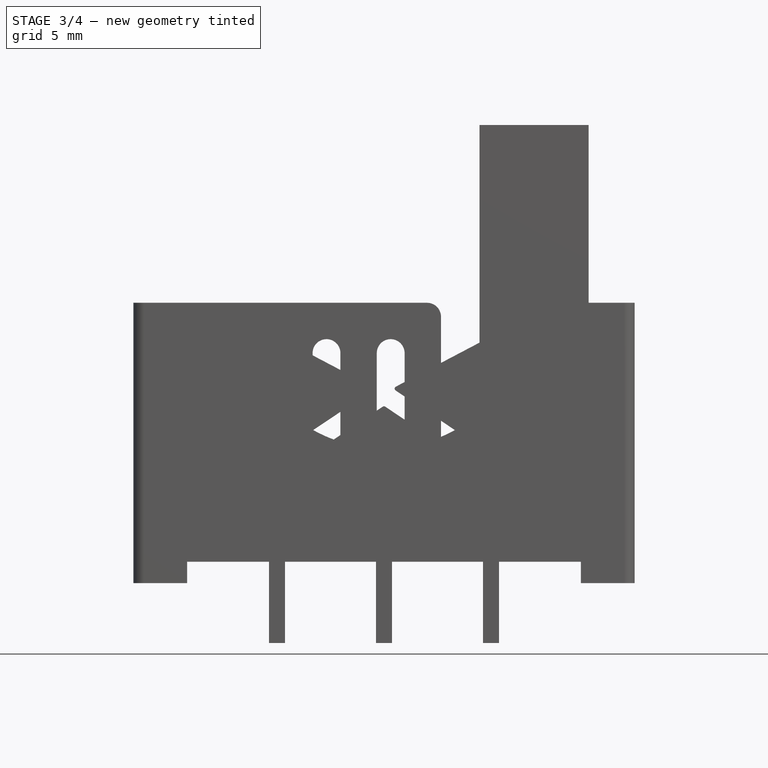
[diagram: stage 3 of 4 — front view after this stage's code; geometry added in this stage tinted green]
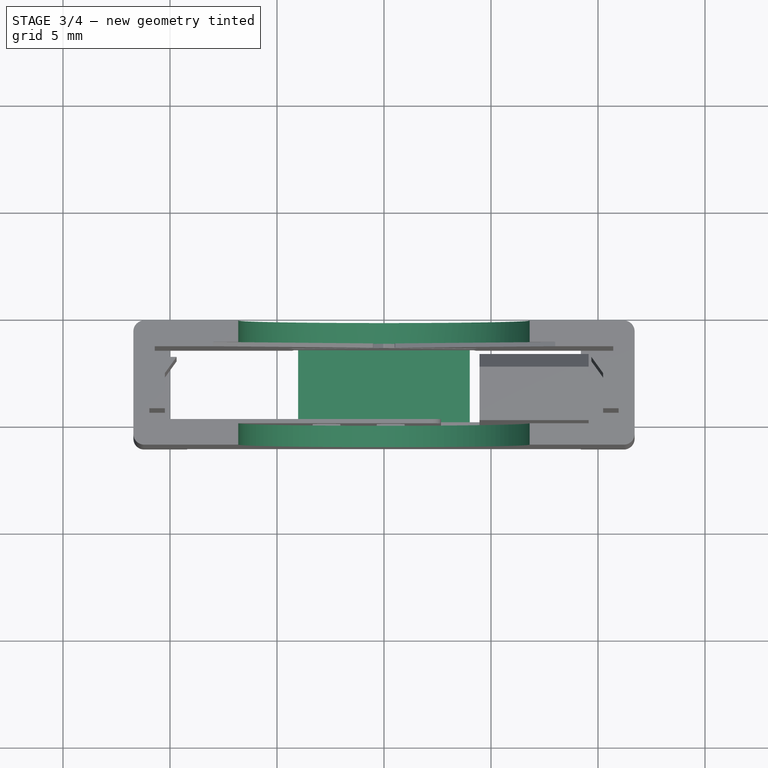
[diagram: stage 3 of 4 — top view after this stage's code; geometry added in this stage tinted green]
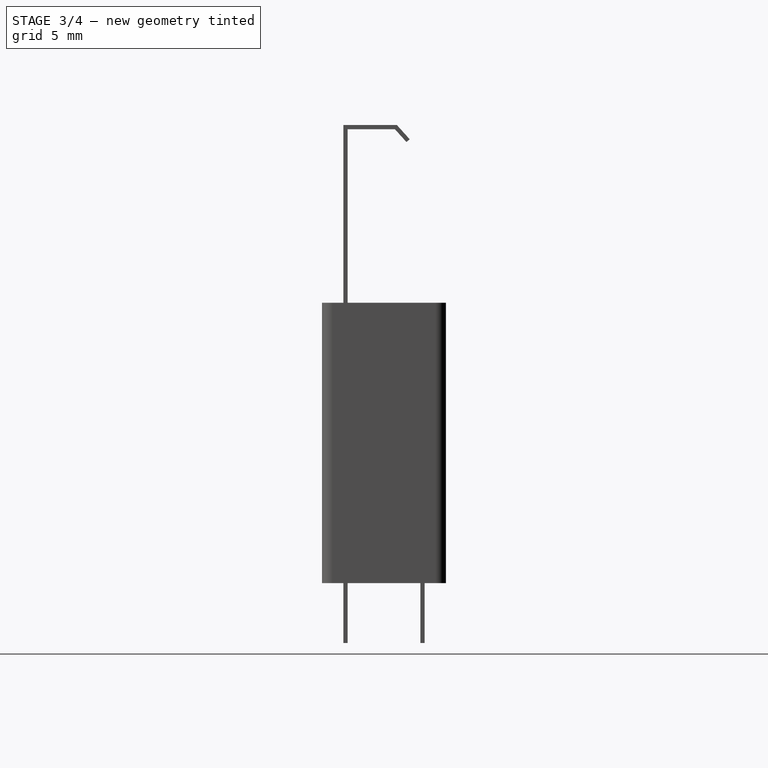
[diagram: stage 3 of 4 — right view after this stage's code; geometry added in this stage tinted green]
FEATURE [Sketcher::SketchObject] Sketch002
  ArcFitTolerance = 0
  AttachmentSupport = -> [XZ_Plane]
  FullyConstrained = true
  MakeInternals = false
  MapMode = 5
  Placement = pos=(0,0,0) rot=(1,0,0;1.5708rad)
  expr: Constraints[10] = <<Param>>.pkgboffset
  expr: Constraints[12] = <<Param>>.pkgh
  sketch-geometry (5):
    g0: Circle CenterX=0 CenterY=13.1 CenterZ=0 NormalX=0 NormalY=0 NormalZ=1 AngleXU=0 Radius=6.808
    g1: LineSegment StartX=-9.198 StartY=1 StartZ=0 EndX=9.198 EndY=1 EndZ=0
    g2: LineSegment StartX=9.198 StartY=1 StartZ=0 EndX=9.198 EndY=0 EndZ=0
    g3: LineSegment StartX=9.198 StartY=0 StartZ=0 EndX=-9.198 EndY=0 EndZ=0
    g4: LineSegment StartX=-9.198 StartY=0 StartZ=0 EndX=-9.198 EndY=1 EndZ=0
  constraints (14):
    c: PointOnObject(g0,g-2)
    c: Coincident(g1,g2)
    c: Coincident(g2,g3)
    c: Coincident(g3,g4)
    c: Coincident(g4,g1)
    c: Horizontal(g1)
    c: Horizontal(g3)
    c: Vertical(g2)
    c: Vertical(g4)
    c: Symmetric(g3,g2,g-1)
    c: DistanceY(g2,g2) = 1
    c: DistanceX(g3,g3) = 18.396
    c: DistanceY(g2,g0) = 13.1
    c: Radius(g0) = 6.808
FEATURE [Sketcher::SketchObject] Sketch003
  ArcFitTolerance = 0
  AttachmentSupport = -> [XY_Plane]
  FullyConstrained = true
  MakeInternals = false
  MapMode = 5
  expr: Constraints[10] = <<Param>>.pkgl / 2 - 1.7 mm
  expr: Constraints[11] = <<Param>>.pinthick / 2
  expr: Constraints[9] = <<Param>>.batw
  sketch-geometry (4):
    g0: LineSegment StartX=-10.01 StartY=3.7 StartZ=0 EndX=-4.01 EndY=3.7 EndZ=0
    g1: LineSegment StartX=-4.01 StartY=3.7 StartZ=0 EndX=-4.01 EndY=-0.1 EndZ=0
    g2: LineSegment StartX=-4.01 StartY=-0.1 StartZ=0 EndX=-10.01 EndY=-0.1 EndZ=0
    g3: LineSegment StartX=-10.01 StartY=-0.1 StartZ=0 EndX=-10.01 EndY=3.7 EndZ=0
  constraints (12):
    c: Coincident(g0,g1)
    c: Coincident(g1,g2)
    c: Coincident(g2,g3)
    c: Coincident(g3,g0)
    c: Horizontal(g0)
    c: Horizontal(g2)
    c: Vertical(g1)
    c: Vertical(g3)
    c: DistanceX(g0,g0) = 6
    c: DistanceY(g1,g1) = 3.8
    c: DistanceX(g2,g-1) = 10.01
    c: DistanceY(g1,g-1) = 0.1
FEATURE [Sketcher::SketchObject] Sketch009
  ArcFitTolerance = 0
  AttachmentSupport = -> [XY_Plane]
  FullyConstrained = true
  MakeInternals = false
  MapMode = 5
  expr: Constraints[41] = <<Param>>.batw
  expr: Constraints[42] = <<Param>>.pinthick / 2
  expr: Constraints[61] = <<Param>>.pkgl
  sketch-geometry (27):
    g0: LineSegment StartX=0.9 StartY=1.2 StartZ=0 EndX=1.7 EndY=1.2 EndZ=0
    g1: LineSegment StartX=1.7 StartY=1.2 StartZ=0 EndX=1.7 EndY=-0.1 EndZ=0
    g2: LineSegment StartX=1.7 StartY=-0.1 StartZ=0 EndX=-1.7 EndY=-0.1 EndZ=0
    g3: LineSegment StartX=-1.7 StartY=-0.1 StartZ=0 EndX=-1.7 EndY=1.2 EndZ=0
    g4: LineSegment StartX=-1.7 StartY=1.2 StartZ=0 EndX=-0.9 EndY=1.2 EndZ=0
    g5: LineSegment StartX=2 StartY=3.7 StartZ=0 EndX=2 EndY=3.3 EndZ=0
    g6: LineSegment StartX=2 StartY=3.3 StartZ=0 EndX=0.7 EndY=3.3 EndZ=0
    g7: LineSegment StartX=0.7 StartY=3.3 StartZ=0 EndX=0.7 EndY=2.5 EndZ=0
    g8: LineSegment StartX=0.7 StartY=2.5 StartZ=0 EndX=-0.7 EndY=2.5 EndZ=0
    g9: LineSegment StartX=-0.7 StartY=2.5 StartZ=0 EndX=-0.7 EndY=3.3 EndZ=0
    g10: LineSegment StartX=-0.7 StartY=3.3 StartZ=0 EndX=-2 EndY=3.3 EndZ=0
    g11: LineSegment StartX=-2 StartY=3.3 StartZ=0 EndX=-2 EndY=3.7 EndZ=0
    g12: LineSegment StartX=-2 StartY=3.7 StartZ=0 EndX=2 EndY=3.7 EndZ=0
    g13: ArcOfCircle CenterX=0 CenterY=1.2 CenterZ=0 NormalX=0 NormalY=0 NormalZ=1 AngleXU=0 Radius=0.9 StartAngle=3.14159 EndAngle=6.28319
    g14: LineSegment [constr] StartX=0.9 StartY=1.2 StartZ=0 EndX=-0.9 EndY=1.2 EndZ=0
    g15: LineSegment StartX=-11.71 StartY=2.55 StartZ=0 EndX=-11.21 EndY=2.55 EndZ=0
    g16: LineSegment StartX=-11.21 StartY=2.55 StartZ=0 EndX=-11.21 EndY=1.05 EndZ=0
    g17: LineSegment StartX=-11.21 StartY=1.05 StartZ=0 EndX=-11.71 EndY=1.05 EndZ=0
    g18: LineSegment StartX=-11.71 StartY=1.05 StartZ=0 EndX=-11.71 EndY=2.55 EndZ=0
    g19: LineSegment StartX=11.21 StartY=2.55 StartZ=0 EndX=11.71 EndY=2.55 EndZ=0
    g20: LineSegment StartX=11.71 StartY=2.55 StartZ=0 EndX=11.71 EndY=1.05 EndZ=0
    g21: LineSegment StartX=11.71 StartY=1.05 StartZ=0 EndX=11.21 EndY=1.05 EndZ=0
    g22: LineSegment StartX=11.21 StartY=1.05 StartZ=0 EndX=11.21 EndY=2.55 EndZ=0
    g23: LineSegment [constr] StartX=-1.7 StartY=-0.1 StartZ=0 EndX=-11.21 EndY=-0.1 EndZ=0
    g24: LineSegment [constr] StartX=-11.21 StartY=-0.1 StartZ=0 EndX=-11.21 EndY=1.05 EndZ=0
    g25: LineSegment [constr] StartX=-2 StartY=3.7 StartZ=0 EndX=-11.21 EndY=3.7 EndZ=0
    g26: LineSegment [constr] StartX=-11.21 StartY=3.7 StartZ=0 EndX=-11.21 EndY=2.55 EndZ=0
  constraints (76):
    c: Horizontal(g0)
    c: Coincident(g0,g1)
    c: Vertical(g1)
    c: Coincident(g1,g2)
    c: Coincident(g2,g3)
    c: Vertical(g3)
    c: Coincident(g3,g4)
    c: Horizontal(g4)
    c: Vertical(g5)
    c: Coincident(g5,g6)
    c: Horizontal(g6)
    c: Coincident(g6,g7)
    c: Vertical(g7)
    c: Coincident(g7,g8)
    c: Horizontal(g8)
    c: Coincident(g8,g9)
    c: Vertical(g9)
    c: Coincident(g9,g10)
    c: Horizontal(g10)
    c: Coincident(g10,g11)
    c: Vertical(g11)
    c: Coincident(g11,g12)
    c: Coincident(g12,g5)
    c: Coincident(g13,g0)
    c: Coincident(g13,g4)
    c: Equal(g0,g4)
    c: Equal(g6,g10)
    c: Equal(g7,g9)
    c: Coincident(g14,g0)
    c: Coincident(g14,g4)
    c: Horizontal(g14)
    c: PointOnObject(g13,g14)
    c: DistanceX(g2,g2) = 3.4
    c: DistanceY(g3,g3) = 1.3
    c: DistanceX(g4,g4) = 0.8
    c: DistanceX(g12,g12) = 4
    c: DistanceY(g11,g11) = 0.4
    c: DistanceY(g8,g11) = 1.2
    c: DistanceX(g8,g8) = 1.4
    c: Symmetric(g1,g2,g-2)
    c: Symmetric(g11,g5,g-2)
    c: DistanceY(g1,g5) = 3.8
    c: DistanceY(g1,g-1) = 0.1
    c: Coincident(g15,g16)
    c: Coincident(g16,g17)
    c: Coincident(g17,g18)
    c: Coincident(g18,g15)
    c: Horizontal(g15)
    c: Horizontal(g17)
    c: Vertical(g16)
    c: Vertical(g18)
    c: Coincident(g19,g20)
    c: Coincident(g20,g21)
    c: Coincident(g21,g22)
    c: Coincident(g22,g19)
    c: Horizontal(g19)
    c: Horizontal(g21)
    c: Vertical(g20)
    c: Vertical(g22)
    c: Equal(g22,g18)
    c: Equal(g15,g19)
    c: DistanceX(g17,g20) = 23.42
    c: DistanceY(g18,g18) = 1.5
    c: DistanceX(g15,g15) = 0.5
    c: Symmetric(g17,g20,g-2)
    c: Coincident(g23,g2)
    c: Horizontal(g23)
    c: Coincident(g24,g23)
    c: Coincident(g24,g16)
    c: Vertical(g24)
    c: Coincident(g25,g11)
    c: Horizontal(g25)
    c: Coincident(g26,g25)
    c: Coincident(g26,g15)
    c: Vertical(g26)
    c: Equal(g26,g24)
FEATURE [Sketcher::SketchObject] Sketch010
  ArcFitTolerance = 0
  AttachmentSupport = -> [XY_Plane]
  FullyConstrained = true
  MakeInternals = false
  MapMode = 5
  expr: Constraints[19] = <<Param>>.pinrow
  expr: Constraints[9] = <<Param>>.pkgw
  sketch-geometry (7):
    g0: LineSegment StartX=-4.01 StartY=-1.1 StartZ=0 EndX=4.01 EndY=-1.1 EndZ=0
    g1: LineSegment StartX=4.01 StartY=-1.1 StartZ=0 EndX=4.01 EndY=4.7 EndZ=0
    g2: LineSegment StartX=4.01 StartY=4.7 StartZ=0 EndX=-4.01 EndY=4.7 EndZ=0
    g3: LineSegment StartX=-4.01 StartY=4.7 StartZ=0 EndX=-4.01 EndY=-1.1 EndZ=0
    g4: LineSegment [constr] StartX=0 StartY=4.7 StartZ=0 EndX=0 EndY=3.6 EndZ=0
    g5: LineSegment [constr] StartX=0 StartY=0 StartZ=0 EndX=0 EndY=-1.1 EndZ=0
    g6: LineSegment [constr] StartX=0 StartY=3.6 StartZ=0 EndX=0 EndY=0 EndZ=0
  constraints (20):
    c: Coincident(g0,g1)
    c: Coincident(g1,g2)
    c: Coincident(g2,g3)
    c: Coincident(g3,g0)
    c: Horizontal(g0)
    c: Vertical(g1)
    c: Vertical(g3)
    c: DistanceX(g2,g2) = 8.02
    c: Symmetric(g2,g1,g-2)
    c: DistanceY(g1,g1) = 5.8
    c: PointOnObject(g4,g2)
    c: Vertical(g4)
    c: Coincident(g5,g-1)
    c: PointOnObject(g5,g0)
    c: Vertical(g5)
    c: Equal(g5,g4)
    c: Coincident(g6,g4)
    c: Coincident(g6,g5)
    c: Vertical(g6)
    c: DistanceY(g6,g6) = 3.6
FEATURE [PartDesign::Pad] Pad001
  BaseFeature = -> Pocket
  Direction = (0,0,1)
  Length = 2
  Length2 = 10
  Profile = -> Sketch010
  ReferenceAxis = -> Sketch010 [N_Axis]
  Suppressed = false
  Type = 0
FEATURE [PartDesign::Pocket] Pocket001
  BaseFeature = -> Pad001
  Direction = (0,1,-2e-16)
  Length = 5
  Length2 = 5
  Midplane = true
  Profile = -> Sketch002
  ReferenceAxis = -> Sketch002 [N_Axis]
  Suppressed = false
  Type = 1
FEATURE [PartDesign::Pocket] Pocket002
  BaseFeature = -> Pocket001
  Direction = (0,0,-1)
  Length = 1
  Length2 = 5
  Profile = -> Sketch003
  ReferenceAxis = -> Sketch003 [N_Axis]
  Reversed = true
  Suppressed = false
  Type = 0
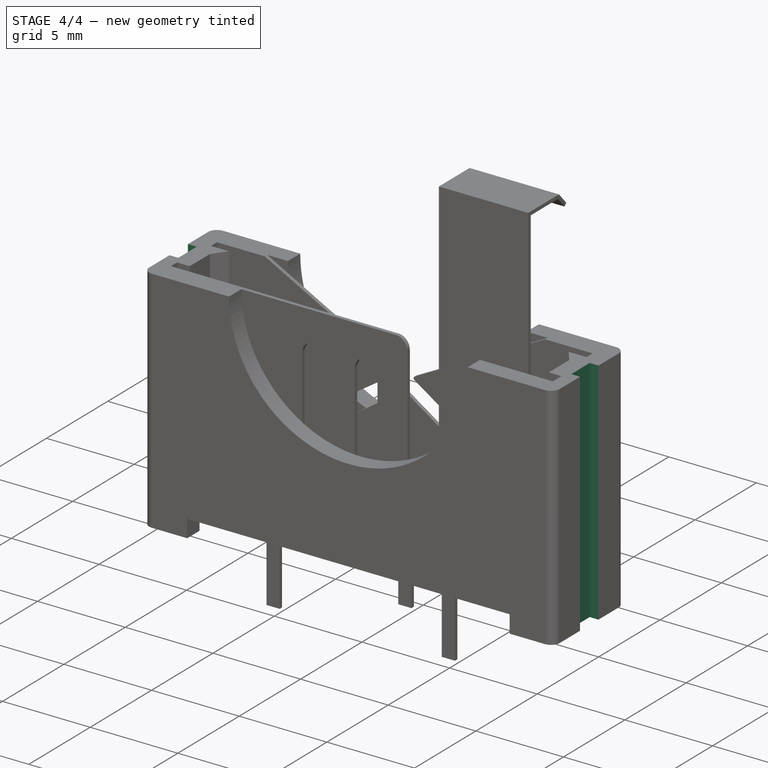
[diagram: stage 4 of 4 — iso view after this stage's code; geometry added in this stage tinted green]
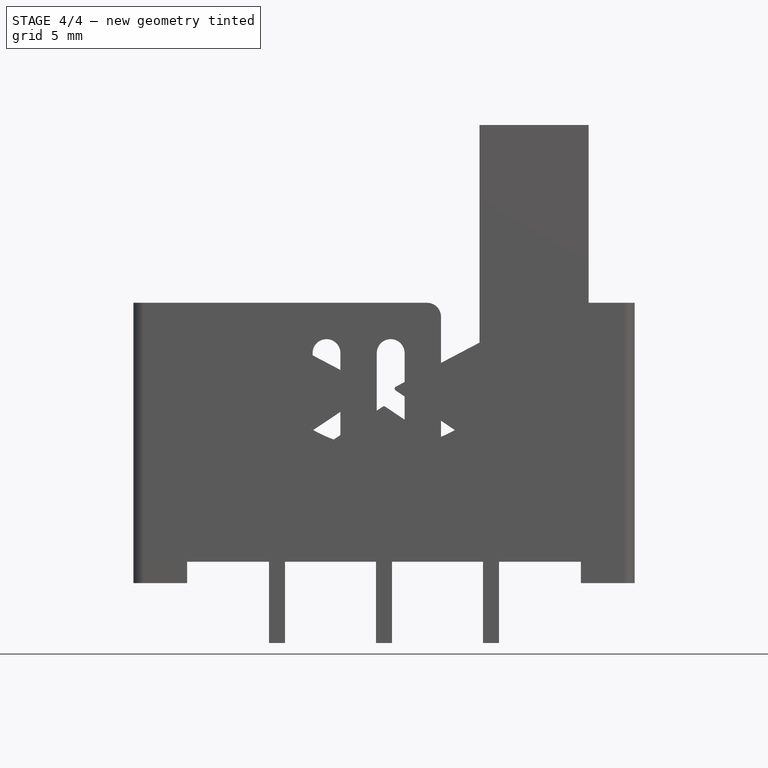
[diagram: stage 4 of 4 — front view after this stage's code; geometry added in this stage tinted green]
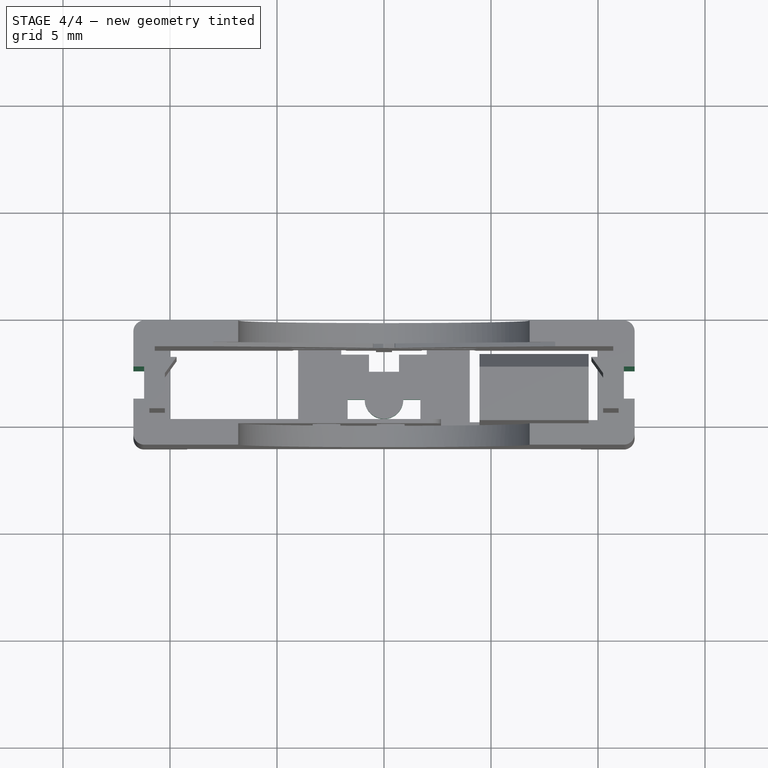
[diagram: stage 4 of 4 — top view after this stage's code; geometry added in this stage tinted green]
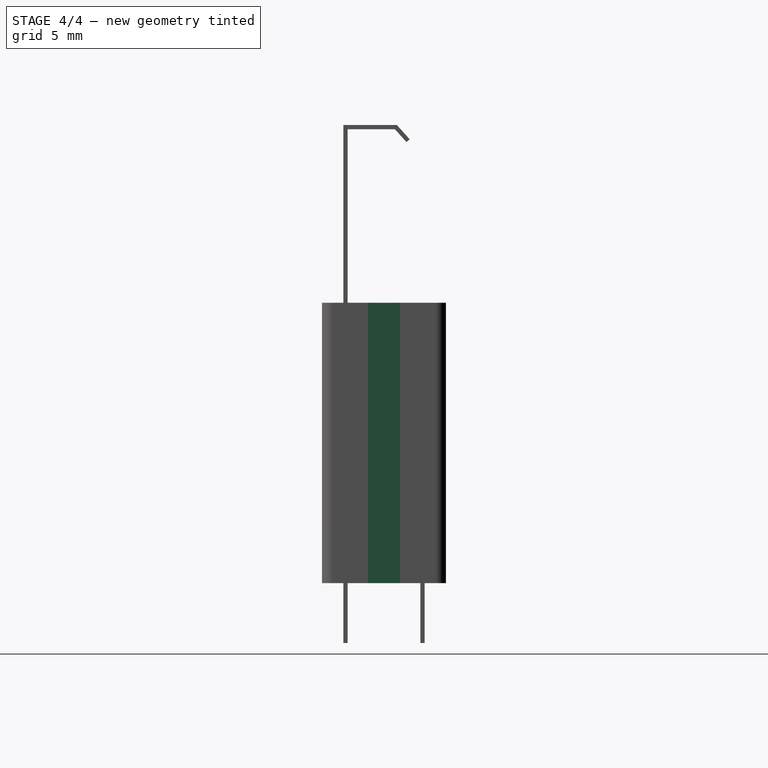
[diagram: stage 4 of 4 — right view after this stage's code; geometry added in this stage tinted green]
FEATURE [PartDesign::Mirrored] Mirrored
  BaseFeature = -> Pocket002
  MirrorPlane = -> Sketch003 [V_Axis]
  Originals = -> [Pocket002]
  Suppressed = false
  TransformMode = 0
FEATURE [PartDesign::Pocket] Pocket003
  BaseFeature = -> Mirrored
  Direction = (0,0,-1)
  Length = 5
  Length2 = 5
  Midplane = true
  Profile = -> Sketch009
  ReferenceAxis = -> Sketch009 [N_Axis]
  Suppressed = false
  Type = 1
FEATURE [Sketcher::SketchObject] Sketch011
  ArcFitTolerance = 0
  AttachmentSupport = -> [XY_Plane]
  FullyConstrained = true
  MakeInternals = false
  MapMode = 5
  expr: Constraints[26] = <<Param>>.pkgl
  expr: Constraints[28] = <<Param>>.pkgw
  expr: Constraints[38] = <<Param>>.pinrow
  sketch-geometry (21):
    g0: LineSegment StartX=-8.21 StartY=0 StartZ=0 EndX=-5.71 EndY=0 EndZ=0
    g1: LineSegment StartX=-5.71 StartY=0 StartZ=0 EndX=-5.71 EndY=-0.7 EndZ=0
    g2: LineSegment StartX=-5.71 StartY=-0.7 StartZ=0 EndX=-8.21 EndY=-0.7 EndZ=0
    g3: LineSegment StartX=-8.21 StartY=-0.7 StartZ=0 EndX=-8.21 EndY=0 EndZ=0
    g4: LineSegment StartX=5.71 StartY=4.3 StartZ=0 EndX=8.21 EndY=4.3 EndZ=0
    g5: LineSegment StartX=8.21 StartY=4.3 StartZ=0 EndX=8.21 EndY=3.6 EndZ=0
    g6: LineSegment StartX=8.21 StartY=3.6 StartZ=0 EndX=5.71 EndY=3.6 EndZ=0
    g7: LineSegment StartX=5.71 StartY=3.6 StartZ=0 EndX=5.71 EndY=4.3 EndZ=0
    g8: LineSegment [constr] StartX=-8.21 StartY=-0.7 StartZ=0 EndX=-11.71 EndY=-0.7 EndZ=0
    g9: LineSegment [constr] StartX=-11.71 StartY=4.7 StartZ=0 EndX=11.71 EndY=4.7 EndZ=0
    g10: LineSegment [constr] StartX=11.71 StartY=4.7 StartZ=0 EndX=11.71 EndY=-1.1 EndZ=0
    g11: LineSegment [constr] StartX=11.71 StartY=-1.1 StartZ=0 EndX=-11.71 EndY=-1.1 EndZ=0
    g12: LineSegment [constr] StartX=-11.71 StartY=-1.1 StartZ=0 EndX=-11.71 EndY=4.7 EndZ=0
    g13: LineSegment [constr] StartX=0 StartY=-1.1 StartZ=0 EndX=0 EndY=0 EndZ=0
    g14: LineSegment [constr] StartX=0 StartY=0 StartZ=0 EndX=0 EndY=3.6 EndZ=0
    g15: LineSegment [constr] StartX=0 StartY=3.6 StartZ=0 EndX=0 EndY=4.7 EndZ=0
    g16: LineSegment [constr] StartX=-8.21 StartY=-0.7 StartZ=0 EndX=-8.21 EndY=-1.1 EndZ=0
    g17: LineSegment [constr] StartX=8.21 StartY=4.3 StartZ=0 EndX=8.21 EndY=4.7 EndZ=0
    g18: LineSegment [constr] StartX=8.21 StartY=4.3 StartZ=0 EndX=11.71 EndY=4.3 EndZ=0
    g19: LineSegment [constr] StartX=0 StartY=3.6 StartZ=0 EndX=5.71 EndY=3.6 EndZ=0
    g20: LineSegment [constr] StartX=0 StartY=0 StartZ=0 EndX=-5.71 EndY=0 EndZ=0
  constraints (60):
    c: Coincident(g0,g1)
    c: Coincident(g1,g2)
    c: Coincident(g2,g3)
    c: Coincident(g3,g0)
    c: Horizontal(g0)
    c: Horizontal(g2)
    c: Vertical(g1)
    c: Vertical(g3)
    c: Coincident(g4,g5)
    c: Coincident(g5,g6)
    c: Coincident(g6,g7)
    c: Coincident(g7,g4)
    c: Horizontal(g4)
    c: Horizontal(g6)
    c: Vertical(g5)
    c: Vertical(g7)
    c: Equal(g2,g6)
    c: Coincident(g8,g2)
    c: Horizontal(g8)
    c: Coincident(g9,g10)
    c: Coincident(g10,g11)
    c: Coincident(g11,g12)
    c: Coincident(g12,g9)
    c: Horizontal(g11)
    c: Vertical(g10)
    c: Vertical(g12)
    c: DistanceX(g9,g9) = 23.42
    c: Symmetric(g9,g9,g-2)
    c: DistanceY(g10,g10) = 5.8
    c: PointOnObject(g13,g11)
    c: Coincident(g13,g-1)
    c: Vertical(g13)
    c: Coincident(g13,g14)
    c: PointOnObject(g14,g-2)
    c: Coincident(g14,g15)
    c: PointOnObject(g15,g9)
    c: Vertical(g15)
    c: Equal(g15,g13)
    c: DistanceY(g14,g14) = 3.6
    c: PointOnObject(g8,g12)
    c: Coincident(g16,g2)
    c: PointOnObject(g16,g11)
    c: Vertical(g16)
    c: Coincident(g17,g4)
    c: PointOnObject(g17,g9)
    c: Vertical(g17)
    c: Coincident(g18,g4)
    c: PointOnObject(g18,g10)
    c: Horizontal(g18)
    c: Equal(g17,g16)
    c: Equal(g8,g18)
    c: Coincident(g19,g14)
    c: Coincident(g19,g6)
    c: Horizontal(g19)
    c: Coincident(g20,g13)
    c: Coincident(g20,g0)
    c: Horizontal(g20)
    c: DistanceX(g16,g1) = 2.5
    c: DistanceX(g11,g16) = 3.5
    c: DistanceY(g11,g8) = 0.4
FEATURE [PartDesign::Pocket] Pocket004
  BaseFeature = -> Pocket003
  Direction = (0,0,-1)
  Length = 7.1
  Length2 = 5
  Profile = -> Sketch011
  ReferenceAxis = -> Sketch011 [N_Axis]
  Refine = true
  Reversed = true
  Suppressed = false
  Type = 0
  expr: Length = <<Param>>.pkgh - 6 mm
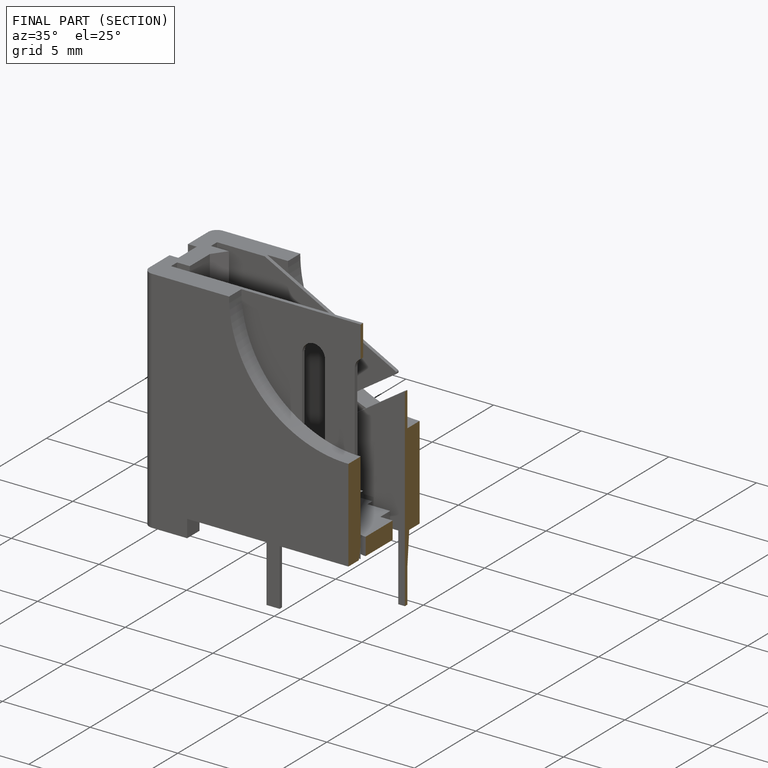
[diagram: finished part — half-section view (interior)]
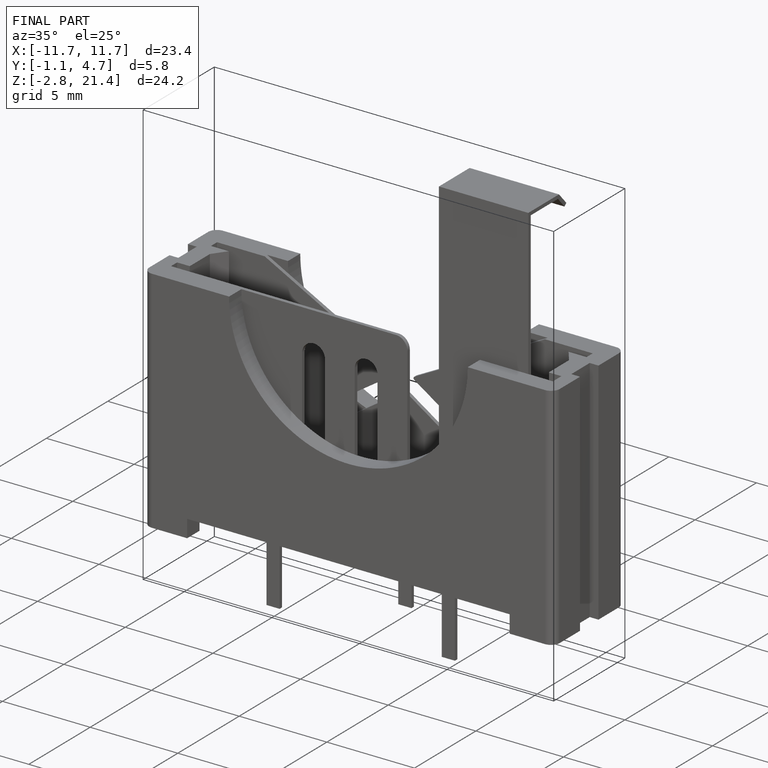
[diagram: finished part — iso view with bounding-box wireframe]
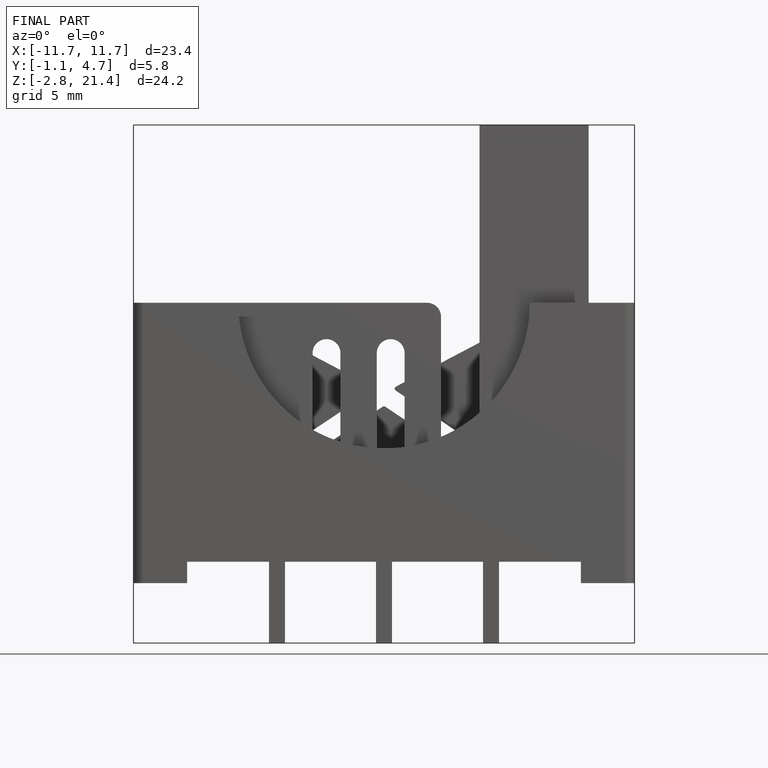
[diagram: finished part — front view with bounding-box wireframe]
